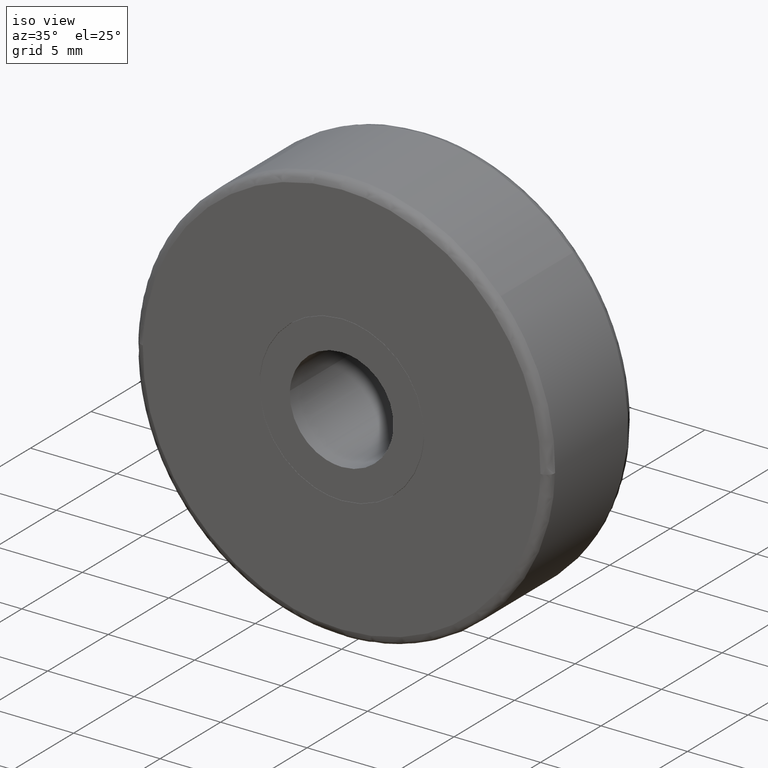
[diagram: clean part render]
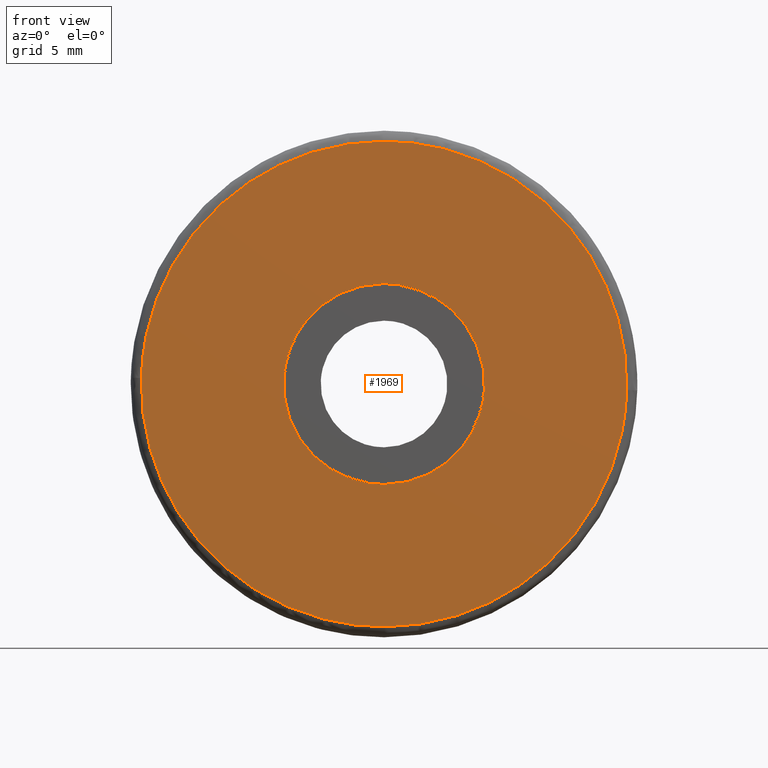
[diagram: tour spotlight — one face highlighted and labeled with its STEP entity id]
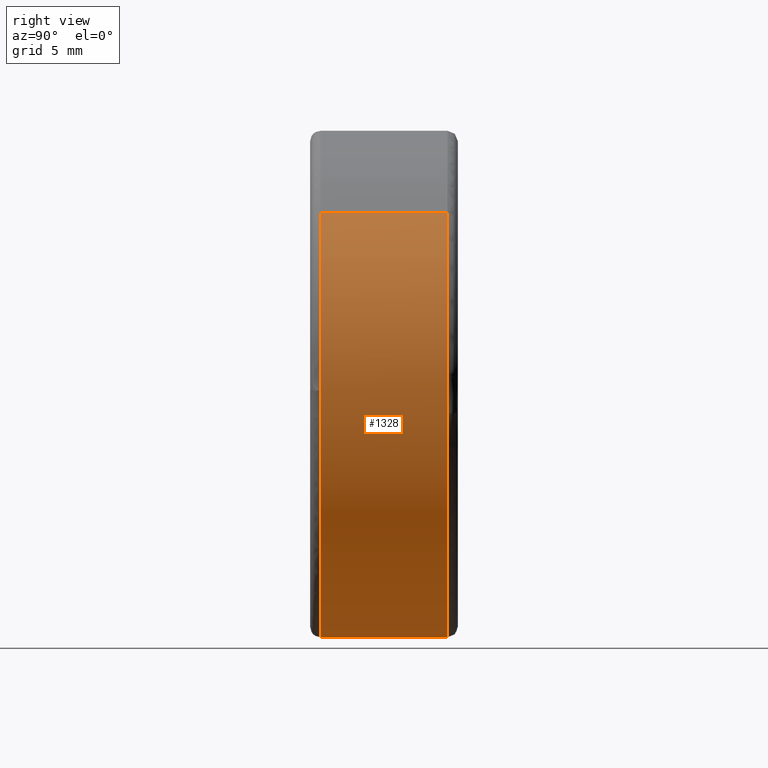
[diagram: tour spotlight — one face highlighted and labeled with its STEP entity id]
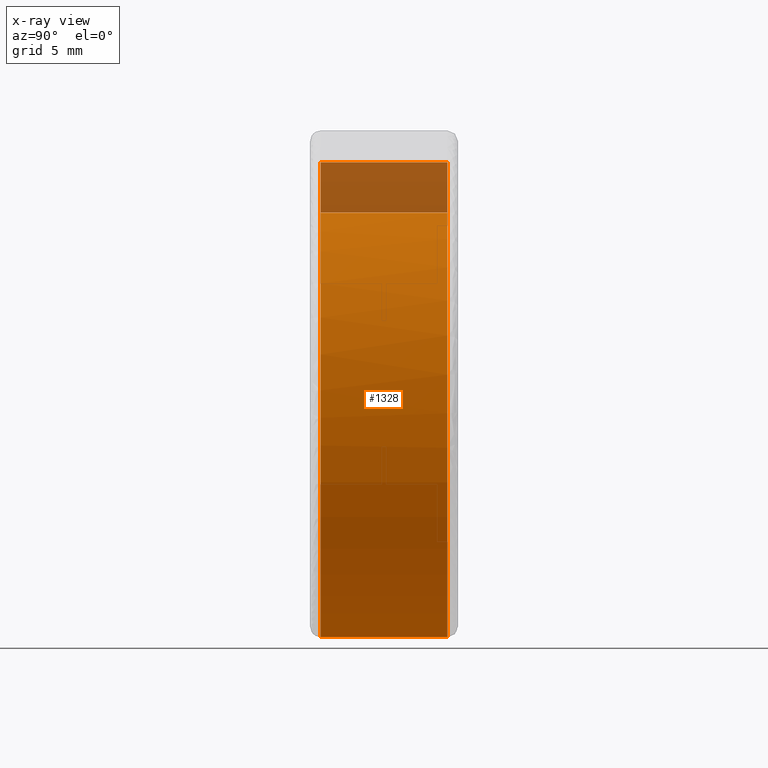
[diagram: x-ray of the same camera — body ghosted, this tour face saturated]
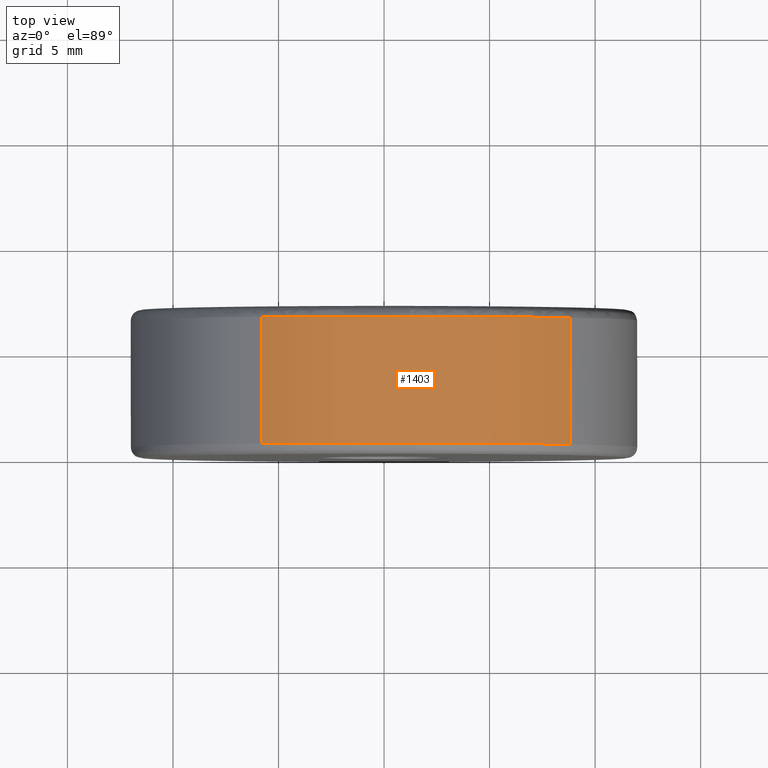
[diagram: tour spotlight — one face highlighted and labeled with its STEP entity id]
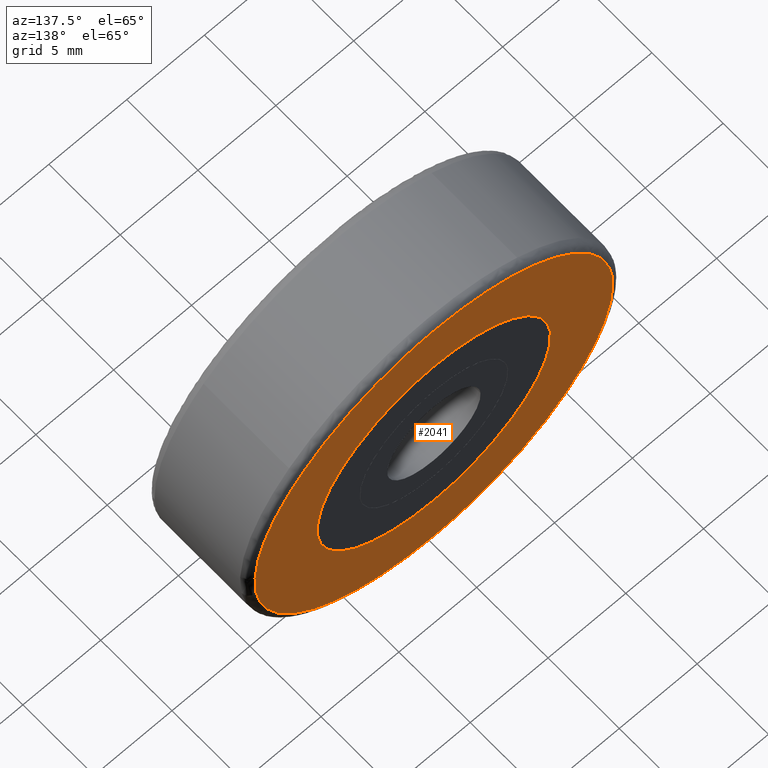
[diagram: tour spotlight — one face highlighted and labeled with its STEP entity id]
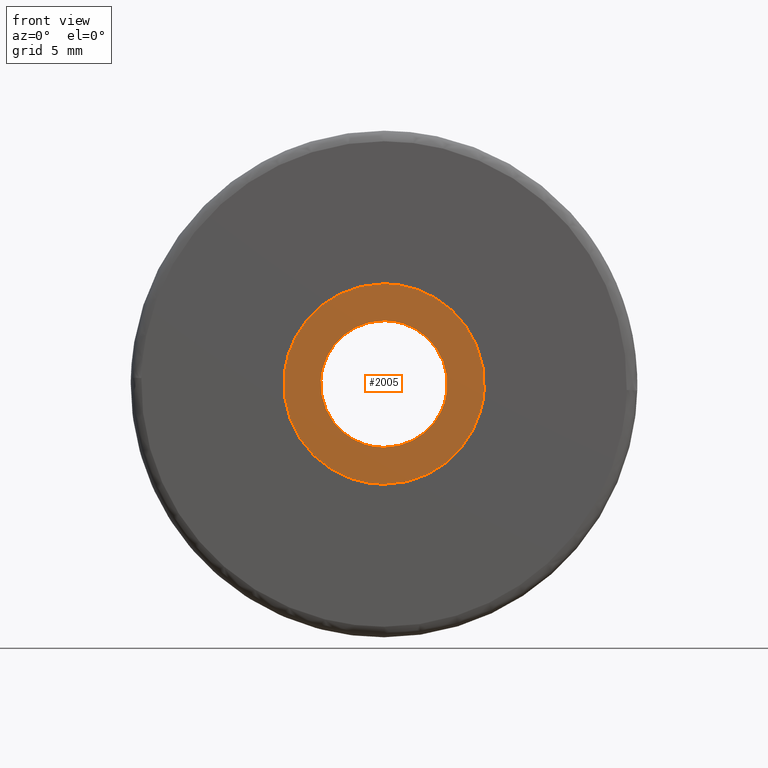
[diagram: tour spotlight — one face highlighted and labeled with its STEP entity id]
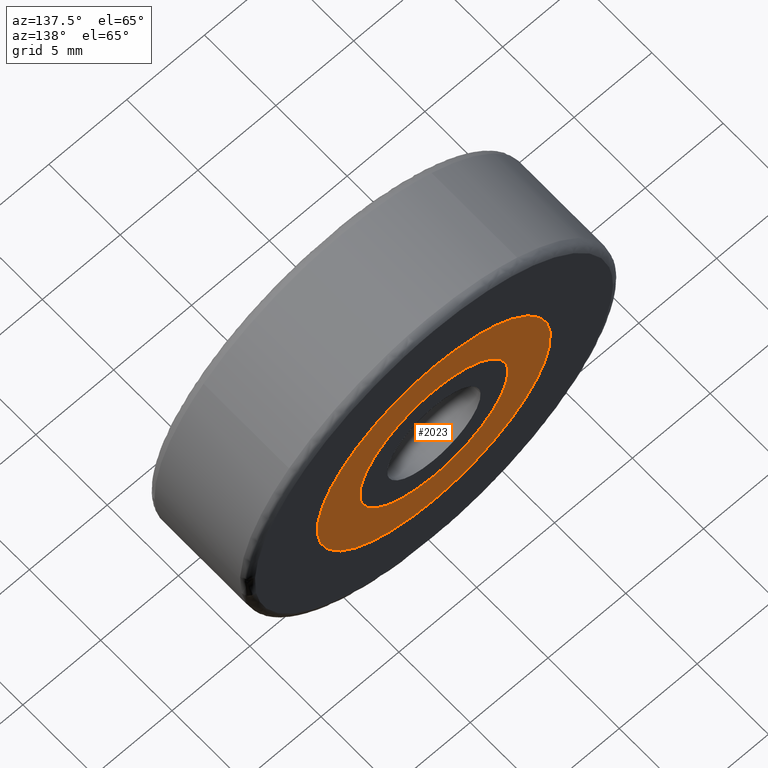
[diagram: tour spotlight — one face highlighted and labeled with its STEP entity id]
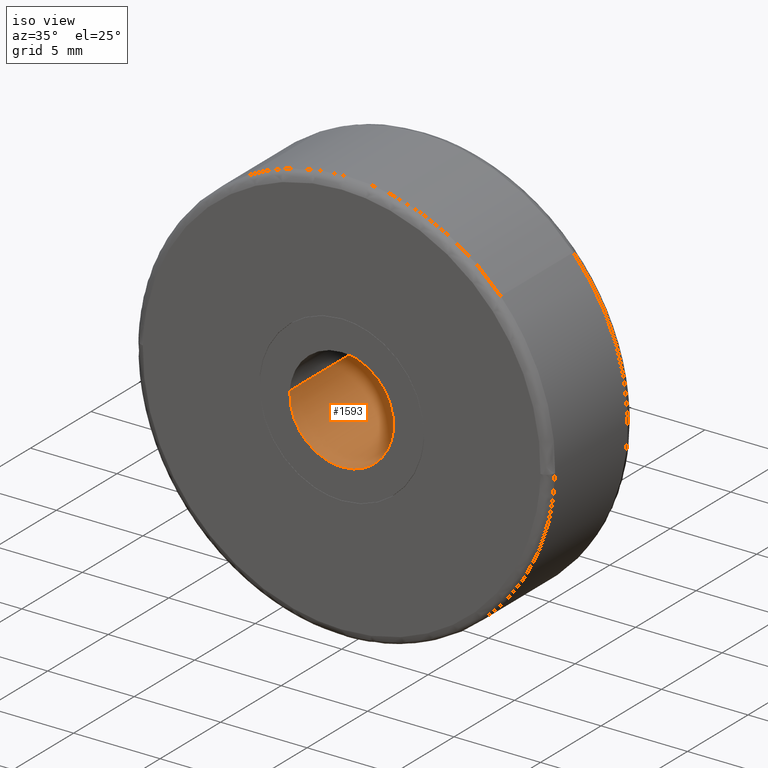
[diagram: tour spotlight — one face highlighted and labeled with its STEP entity id]
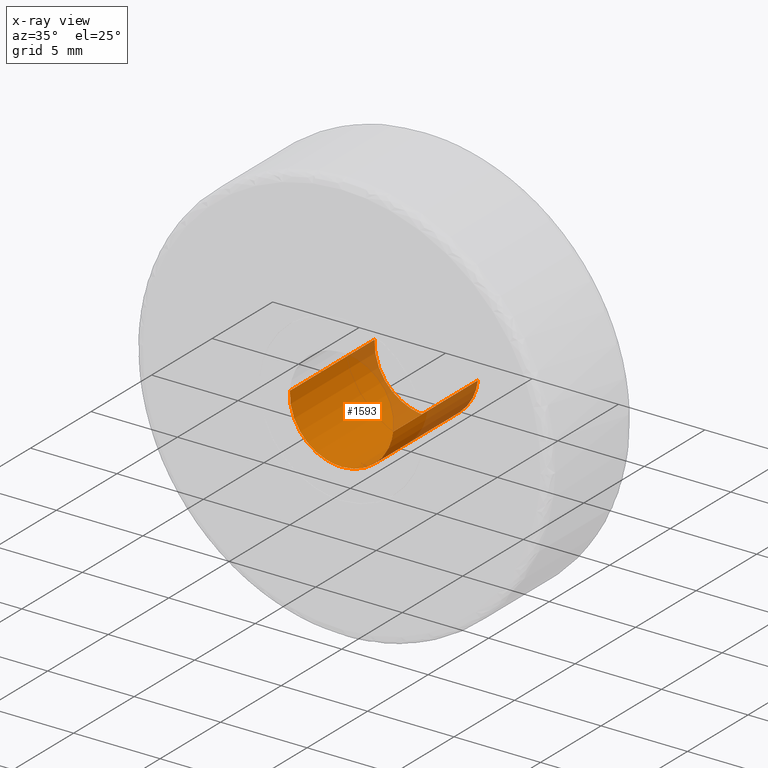
[diagram: x-ray of the same camera — body ghosted, this tour face saturated]
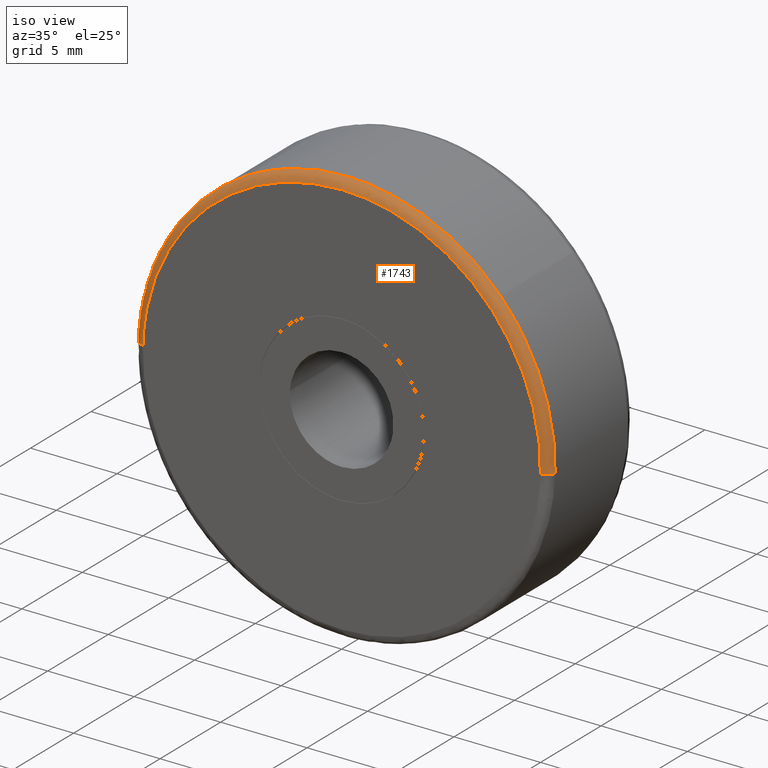
[diagram: tour spotlight — one face highlighted and labeled with its STEP entity id]
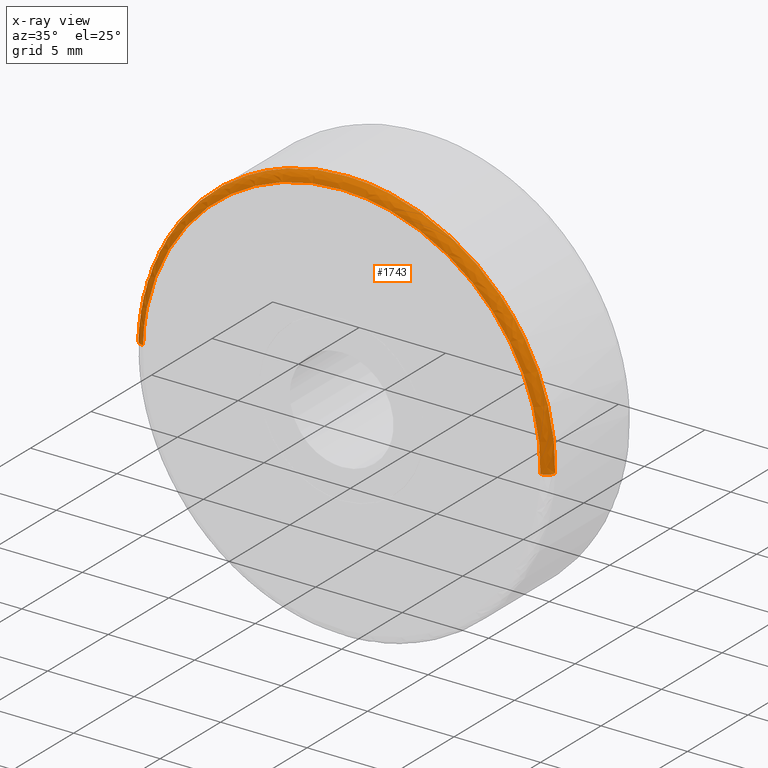
[diagram: x-ray of the same camera — body ghosted, this tour face saturated]
A machine part: a face-by-face anatomy tour. The part has 28 B-rep faces; the first image is the clean iso view, then the 8 largest visible faces are spotlighted one at a time (largest first), each with its STEP entity span.

Face 1 — front view, entity #1969. In plain terms, the highlighted face is a freeform B-spline surface patch.
Definition (entity closure, byte-faithful):
#829=CARTESIAN_POINT('',(-4.726725345488690,2.839428E-017,0.561842956986043));
#830=VERTEX_POINT('',#829);
#836=CARTESIAN_POINT('',(0.0,0.0,-4.760000000000001));
#837=VERTEX_POINT('',#836);
#838=CARTESIAN_POINT('',(-4.726725345488690,2.839428E-017,0.561842956986043));
#839=CARTESIAN_POINT('',(-4.760000000000001,0.0,0.281906809563175));
#840=CARTESIAN_POINT('',(-4.760000000000001,0.0,0.0));
#841=CARTESIAN_POINT('',(-4.760000000000001,0.0,-4.760000000000001));
#842=CARTESIAN_POINT('',(0.0,0.0,-4.760000000000001));
#850=(BOUNDED_CURVE()B_SPLINE_CURVE(2,(#838,#839,#840,#841,#842),.UNSPECIFIED.,.F.,.U.)B_SPLINE_CURVE_WITH_KNOTS((3,2,3),(0.229562473514223,0.250000000000000,0.500000000000000),.UNSPECIFIED.)CURVE()GEOMETRIC_REPRESENTATION_ITEM()RATIONAL_B_SPLINE_CURVE((0.956026754185100,0.976055948331983,1.0,0.707106781186548,1.0))REPRESENTATION_ITEM(''));
#851=EDGE_CURVE('',#830,#837,#850,.T.);
#853=CARTESIAN_POINT('',(4.751121640486563,2.775558E-017,-0.290591048210843));
#854=VERTEX_POINT('',#853);
#855=CARTESIAN_POINT('',(0.0,0.0,-4.760000000000001));
#856=CARTESIAN_POINT('',(4.477760878424028,0.0,-4.760000000000001));
#857=CARTESIAN_POINT('',(4.751121640486563,2.775558E-017,-0.290591048210843));
#865=(BOUNDED_CURVE()B_SPLINE_CURVE(2,(#855,#856,#857),.UNSPECIFIED.,.F.,.U.)B_SPLINE_CURVE_WITH_KNOTS((3,3),(0.500000000000000,0.739332962240157),.UNSPECIFIED.)CURVE()GEOMETRIC_REPRESENTATION_ITEM()RATIONAL_B_SPLINE_CURVE((1.0,0.719603993285287,0.976072041669321))REPRESENTATION_ITEM(''));
#866=EDGE_CURVE('',#837,#854,#865,.T.);
#940=CARTESIAN_POINT('',(0.0,0.0,4.760000000000001));
#941=VERTEX_POINT('',#940);
#942=CARTESIAN_POINT('',(4.751121640486563,2.775558E-017,-0.290591048210843));
#943=CARTESIAN_POINT('',(4.760000000000001,0.0,-0.145431153326277));
#944=CARTESIAN_POINT('',(4.760000000000001,0.0,0.0));
#945=CARTESIAN_POINT('',(4.760000000000001,0.0,4.760000000000001));
#946=CARTESIAN_POINT('',(0.0,0.0,4.760000000000001));
#954=(BOUNDED_CURVE()B_SPLINE_CURVE(2,(#942,#943,#944,#945,#946),.UNSPECIFIED.,.F.,.U.)B_SPLINE_CURVE_WITH_KNOTS((3,2,3),(0.739332962240158,0.750000000000000,1.0),.UNSPECIFIED.)CURVE()GEOMETRIC_REPRESENTATION_ITEM()RATIONAL_B_SPLINE_CURVE((0.976072041669322,0.987502787901261,1.0,0.707106781186548,1.0))REPRESENTATION_ITEM(''));
#955=EDGE_CURVE('',#854,#941,#954,.T.);
#957=CARTESIAN_POINT('',(0.0,0.0,4.760000000000001));
#958=CARTESIAN_POINT('',(-4.227710743492712,0.0,4.760000000000001));
#959=CARTESIAN_POINT('',(-4.726725345488691,2.839428E-017,0.561842956986043));
#967=(BOUNDED_CURVE()B_SPLINE_CURVE(2,(#957,#958,#959),.UNSPECIFIED.,.F.,.U.)B_SPLINE_CURVE_WITH_KNOTS((3,3),(0.0,0.229562473514223),.UNSPECIFIED.)CURVE()GEOMETRIC_REPRESENTATION_ITEM()RATIONAL_B_SPLINE_CURVE((1.0,0.731050832854565,0.956026754185101))REPRESENTATION_ITEM(''));
#968=EDGE_CURVE('',#941,#830,#967,.T.);
#1617=CARTESIAN_POINT('',(-11.496368177523900,-9.688065E-016,0.288996097631335));
#1618=VERTEX_POINT('',#1617);
#1619=CARTESIAN_POINT('',(0.0,-2.109424E-015,-11.500000000000000));
#1620=VERTEX_POINT('',#1619);
#1621=CARTESIAN_POINT('',(-11.496368177523902,-9.688065E-016,0.288996097631335));
#1622=CARTESIAN_POINT('',(-11.500000000000000,-2.109424E-015,0.144520869432563));
#1623=CARTESIAN_POINT('',(-11.500000000000000,-2.109424E-015,-1.642359E-016));
#1624=CARTESIAN_POINT('',(-11.500000000000000,-2.109424E-015,-11.500000000000000));
#1625=CARTESIAN_POINT('',(0.0,-2.109424E-015,-11.500000000000000));
#1633=(BOUNDED_CURVE()B_SPLINE_CURVE(2,(#1621,#1622,#1623,#1624,#1625),.UNSPECIFIED.,.F.,.U.)B_SPLINE_CURVE_WITH_KNOTS((3,2,3),(0.745579891769391,0.750000000000000,1.0),.UNSPECIFIED.)CURVE()GEOMETRIC_REPRESENTATION_ITEM()RATIONAL_B_SPLINE_CURVE((0.989826157680634,0.994821521091332,1.0,0.707106781186548,1.0))REPRESENTATION_ITEM(''));
#1634=EDGE_CURVE('',#1618,#1620,#1633,.T.);
#1651=CARTESIAN_POINT('',(11.496368177523900,-9.609969E-016,-0.288996097631335));
#1652=VERTEX_POINT('',#1651);
#1666=CARTESIAN_POINT('',(0.0,-2.109424E-015,-11.500000000000000));
#1667=CARTESIAN_POINT('',(11.214545576050746,-2.109424E-015,-11.500000000000000));
#1668=CARTESIAN_POINT('',(11.496368177523902,-9.609969E-016,-0.288996097631335));
#1676=(BOUNDED_CURVE()B_SPLINE_CURVE(2,(#1666,#1667,#1668),.UNSPECIFIED.,.F.,.U.)B_SPLINE_CURVE_WITH_KNOTS((3,3),(0.0,0.245579891769391),.UNSPECIFIED.)CURVE()GEOMETRIC_REPRESENTATION_ITEM()RATIONAL_B_SPLINE_CURVE((1.0,0.712285260095215,0.989826157680634))REPRESENTATION_ITEM(''));
#1677=EDGE_CURVE('',#1620,#1652,#1676,.T.);
#1705=CARTESIAN_POINT('',(0.0,-2.109424E-015,11.500000000000000));
#1706=VERTEX_POINT('',#1705);
#1707=CARTESIAN_POINT('',(0.0,-2.109424E-015,11.500000000000000));
#1708=CARTESIAN_POINT('',(-11.214545576050815,-2.109424E-015,11.499999999999996));
#1709=CARTESIAN_POINT('',(-11.496368177523905,-9.688065E-016,0.288996097631335));
#1717=(BOUNDED_CURVE()B_SPLINE_CURVE(2,(#1707,#1708,#1709),.UNSPECIFIED.,.F.,.U.)B_SPLINE_CURVE_WITH_KNOTS((3,3),(0.500000000000000,0.745579891769392),.UNSPECIFIED.)CURVE()GEOMETRIC_REPRESENTATION_ITEM()RATIONAL_B_SPLINE_CURVE((1.0,0.712285260095214,0.989826157680637))REPRESENTATION_ITEM(''));
#1718=EDGE_CURVE('',#1706,#1618,#1717,.T.);
#1720=CARTESIAN_POINT('',(11.496368177523902,-9.609969E-016,-0.288996097631335));
#1721=CARTESIAN_POINT('',(11.500000000000000,-2.109424E-015,-0.144520869432563));
#1722=CARTESIAN_POINT('',(11.500000000000000,-2.109424E-015,-1.642359E-016));
#1723=CARTESIAN_POINT('',(11.500000000000000,-2.109424E-015,11.500000000000000));
#1724=CARTESIAN_POINT('',(0.0,-2.109424E-015,11.500000000000000));
#1732=(BOUNDED_CURVE()B_SPLINE_CURVE(2,(#1720,#1721,#1722,#1723,#1724),.UNSPECIFIED.,.F.,.U.)B_SPLINE_CURVE_WITH_KNOTS((3,2,3),(0.245579891769391,0.250000000000000,0.500000000000000),.UNSPECIFIED.)CURVE()GEOMETRIC_REPRESENTATION_ITEM()RATIONAL_B_SPLINE_CURVE((0.989826157680634,0.994821521091332,1.0,0.707106781186548,1.0))REPRESENTATION_ITEM(''));
#1733=EDGE_CURVE('',#1652,#1706,#1732,.T.);
#1952=CARTESIAN_POINT('',(-12.644855529733510,-1.330248E-015,-12.648849955421539));
#1953=CARTESIAN_POINT('',(-12.644855529733521,-1.330248E-015,12.648850572329611));
#1954=CARTESIAN_POINT('',(12.644855940875679,-1.330248E-015,-12.648849955421539));
#1955=CARTESIAN_POINT('',(12.644855940875679,-1.330248E-015,12.648850572329611));
#1956=B_SPLINE_SURFACE_WITH_KNOTS('',1,1,((#1952,#1954),(#1953,#1955)),.UNSPECIFIED.,.F.,.F.,.U.,(2,2),(2,2),(0.0,25.297700527751150),(0.0,25.289711470609198),.UNSPECIFIED.);
#1957=ORIENTED_EDGE('',*,*,#1677,.T.);
#1958=ORIENTED_EDGE('',*,*,#1733,.T.);
#1959=ORIENTED_EDGE('',*,*,#1718,.T.);
#1960=ORIENTED_EDGE('',*,*,#1634,.T.);
#1961=EDGE_LOOP('',(#1957,#1958,#1959,#1960));
#1962=FACE_OUTER_BOUND('',#1961,.T.);
#1963=ORIENTED_EDGE('',*,*,#866,.F.);
#1964=ORIENTED_EDGE('',*,*,#851,.F.);
#1965=ORIENTED_EDGE('',*,*,#968,.F.);
#1966=ORIENTED_EDGE('',*,*,#955,.F.);
#1967=EDGE_LOOP('',(#1963,#1964,#1965,#1966));
#1968=FACE_BOUND('',#1967,.T.);
#1969=ADVANCED_FACE('',(#1962,#1968),#1956,.F.);

Face 2 — right view, entity #1328. An x-ray twin of the same camera follows (body ghosted, this face saturated) — the face is partly hidden behind the body. In plain terms, the highlighted face is a freeform B-spline surface patch.
Definition (entity closure, byte-faithful):
#1160=CARTESIAN_POINT('',(-5.810636787052554,6.650000000059783,10.499357129317559));
#1161=CARTESIAN_POINT('',(-7.056907316848397,6.650000000059783,9.809636292331240));
#1162=CARTESIAN_POINT('',(-8.107082491387921,6.650000000059784,8.847328041721486));
#1163=CARTESIAN_POINT('',(-16.954410533109407,6.650000000059783,0.740245550333565));
#1164=CARTESIAN_POINT('',(-8.847328041721486,6.650000000059784,-8.107082491387921));
#1165=CARTESIAN_POINT('',(-0.740245550333565,6.650000000059783,-16.954410533109407));
#1166=CARTESIAN_POINT('',(8.107082491387921,6.650000000059784,-8.847328041721486));
#1167=CARTESIAN_POINT('',(16.954410533109407,6.650000000059783,-0.740245550333565));
#1168=CARTESIAN_POINT('',(8.847328041721486,6.650000000059784,8.107082491387921));
#1169=CARTESIAN_POINT('',(-5.810636787052554,0.346249999846186,10.499357129317559));
#1170=CARTESIAN_POINT('',(-7.056907316848397,0.346249999846186,9.809636292331240));
#1171=CARTESIAN_POINT('',(-8.107082491387921,0.346249999846186,8.847328041721486));
#1172=CARTESIAN_POINT('',(-16.954410533109407,0.346249999846186,0.740245550333565));
#1173=CARTESIAN_POINT('',(-8.847328041721486,0.346249999846186,-8.107082491387921));
#1174=CARTESIAN_POINT('',(-0.740245550333565,0.346249999846186,-16.954410533109407));
#1175=CARTESIAN_POINT('',(8.107082491387921,0.346249999846186,-8.847328041721486));
#1176=CARTESIAN_POINT('',(16.954410533109407,0.346249999846186,-0.740245550333565));
#1177=CARTESIAN_POINT('',(8.847328041721486,0.346249999846186,8.107082491387921));
#1185=(BOUNDED_SURFACE()B_SPLINE_SURFACE(2,1,((#1160,#1169),(#1161,#1170),(#1162,#1171),(#1163,#1172),(#1164,#1173),(#1165,#1174),(#1166,#1175),(#1167,#1176),(#1168,#1177)),.UNSPECIFIED.,.F.,.F.,.U.)B_SPLINE_SURFACE_WITH_KNOTS((3,2,2,2,3),(2,2),(0.0,3.181160159025371,23.063411152933931,42.945662146842487,62.827913140751043),(0.0,6.303750000213599),.UNSPECIFIED.)GEOMETRIC_REPRESENTATION_ITEM()RATIONAL_B_SPLINE_SURFACE(((0.921270302782944,0.921270302782944),(0.953137084989848,0.953137084989848),(1.0,1.0),(0.707106781186548,0.707106781186548),(1.0,1.0),(0.707106781186548,0.707106781186548),(1.0,1.0),(0.707106781186548,0.707106781186548),(1.0,1.0)))REPRESENTATION_ITEM('')SURFACE());
#1186=CARTESIAN_POINT('',(-5.810634932665174,0.499999999980924,10.499358155586769));
#1187=VERTEX_POINT('',#1186);
#1188=CARTESIAN_POINT('',(-11.996210271399590,0.499999999851395,0.301561145320187));
#1189=VERTEX_POINT('',#1188);
#1190=CARTESIAN_POINT('',(-5.810634932665174,0.499999999980924,10.499358155586771));
#1191=CARTESIAN_POINT('',(-11.823509306634717,0.499999999938666,7.171667322931254));
#1192=CARTESIAN_POINT('',(-11.996210271399599,0.499999999851396,0.301561145320187));
#1200=(BOUNDED_CURVE()B_SPLINE_CURVE(2,(#1190,#1191,#1192),.UNSPECIFIED.,.F.,.U.)B_SPLINE_CURVE_WITH_KNOTS((3,3),(0.582484261791916,0.745579891769803),.UNSPECIFIED.)CURVE()GEOMETRIC_REPRESENTATION_ITEM()RATIONAL_B_SPLINE_CURVE((0.870495159113431,0.805504439765903,0.989826157681565))REPRESENTATION_ITEM(''));
#1201=EDGE_CURVE('',#1187,#1189,#1200,.T.);
#1202=ORIENTED_EDGE('',*,*,#1201,.F.);
#1203=CARTESIAN_POINT('',(-5.810634867246032,6.500000000006367,10.499358191791520));
#1204=VERTEX_POINT('',#1203);
#1205=CARTESIAN_POINT('',(-5.810634867246032,6.500000000006367,10.499358191791520));
#1206=CARTESIAN_POINT('',(-5.810634932665174,0.499999999980924,10.499358155586769));
#1207=QUASI_UNIFORM_CURVE('',1,(#1205,#1206),.UNSPECIFIED.,.F.,.U.);
#1208=EDGE_CURVE('',#1204,#1187,#1207,.T.);
#1209=ORIENTED_EDGE('',*,*,#1208,.F.);
#1210=CARTESIAN_POINT('',(-12.0,6.500000000050907,0.0));
#1211=VERTEX_POINT('',#1210);
#1212=CARTESIAN_POINT('',(-5.810634867246032,6.500000000006366,10.499358191791520));
#1213=CARTESIAN_POINT('',(-11.999999999999963,6.500000000020898,7.073992546621740));
#1214=CARTESIAN_POINT('',(-11.999999999999993,6.500000000050908,0.0));
#1222=(BOUNDED_CURVE()B_SPLINE_CURVE(2,(#1212,#1213,#1214),.UNSPECIFIED.,.F.,.U.)B_SPLINE_CURVE_WITH_KNOTS((3,3),(0.582484260833104,0.749999999999999),.UNSPECIFIED.)CURVE()GEOMETRIC_REPRESENTATION_ITEM()RATIONAL_B_SPLINE_CURVE((0.870495159877570,0.803743103813973,0.999999999999998))REPRESENTATION_ITEM(''));
#1223=EDGE_CURVE('',#1204,#1211,#1222,.T.);
#1224=ORIENTED_EDGE('',*,*,#1223,.T.);
#1225=CARTESIAN_POINT('',(0.0,6.500000000000000,-12.0));
#1226=VERTEX_POINT('',#1225);
#1227=CARTESIAN_POINT('',(-12.0,6.500000000050907,0.0));
#1228=CARTESIAN_POINT('',(-12.0,6.500000000000001,-12.0));
#1229=CARTESIAN_POINT('',(0.0,6.500000000000000,-12.0));
#1237=(BOUNDED_CURVE()B_SPLINE_CURVE(2,(#1227,#1228,#1229),.UNSPECIFIED.,.F.,.U.)B_SPLINE_CURVE_WITH_KNOTS((3,3),(0.750000000000000,1.0),.UNSPECIFIED.)CURVE()GEOMETRIC_REPRESENTATION_ITEM()RATIONAL_B_SPLINE_CURVE((1.0,0.707106781186548,1.0))REPRESENTATION_ITEM(''));
#1238=EDGE_CURVE('',#1211,#1226,#1237,.T.);
#1239=ORIENTED_EDGE('',*,*,#1238,.T.);
#1240=CARTESIAN_POINT('',(11.919739665420460,6.500000000054701,-1.385570751929333));
#1241=VERTEX_POINT('',#1240);
#1242=CARTESIAN_POINT('',(0.0,6.500000000000000,-12.0));
#1243=CARTESIAN_POINT('',(10.685900409915295,6.499999999999999,-12.0));
#1244=CARTESIAN_POINT('',(11.919739665420463,6.500000000054701,-1.385570751929333));
#1252=(BOUNDED_CURVE()B_SPLINE_CURVE(2,(#1242,#1243,#1244),.UNSPECIFIED.,.F.,.U.)B_SPLINE_CURVE_WITH_KNOTS((3,3),(0.0,0.229999999999874),.UNSPECIFIED.)CURVE()GEOMETRIC_REPRESENTATION_ITEM()RATIONAL_B_SPLINE_CURVE((1.0,0.730538238691772,0.956886118190411))REPRESENTATION_ITEM(''));
#1253=EDGE_CURVE('',#1226,#1241,#1252,.T.);
#1254=ORIENTED_EDGE('',*,*,#1253,.T.);
#1255=CARTESIAN_POINT('',(8.847328477253249,6.500000000000000,8.107082016088356));
#1256=VERTEX_POINT('',#1255);
#1257=CARTESIAN_POINT('',(11.919739665420463,6.500000000054701,-1.385570751929333));
#1258=CARTESIAN_POINT('',(11.999999999999998,6.499999999999999,-0.695109949179016));
#1259=CARTESIAN_POINT('',(12.0,6.500000000000000,-1.642359E-016));
#1260=CARTESIAN_POINT('',(12.000000000000002,6.500000000000000,4.666544040076233));
#1261=CARTESIAN_POINT('',(8.847328477253249,6.500000000000000,8.107082016088357));
#1269=(BOUNDED_CURVE()B_SPLINE_CURVE(2,(#1257,#1258,#1259,#1260,#1261),.UNSPECIFIED.,.F.,.U.)B_SPLINE_CURVE_WITH_KNOTS((3,2,3),(0.229999999999874,0.250000000000000,0.368415192864190),.UNSPECIFIED.)CURVE()GEOMETRIC_REPRESENTATION_ITEM()RATIONAL_B_SPLINE_CURVE((0.956886118190411,0.976568542494776,1.0,0.861267972022366,0.853959782840026))REPRESENTATION_ITEM(''));
#1270=EDGE_CURVE('',#1241,#1256,#1269,.T.);
#1271=ORIENTED_EDGE('',*,*,#1270,.T.);
#1272=CARTESIAN_POINT('',(8.847328482693925,0.500000000000004,8.107082010150897));
#1273=VERTEX_POINT('',#1272);
#1274=CARTESIAN_POINT('',(8.847328477253249,6.500000000000000,8.107082016088356));
#1275=CARTESIAN_POINT('',(8.847328482693925,0.500000000000004,8.107082010150897));
#1276=QUASI_UNIFORM_CURVE('',1,(#1274,#1275),.UNSPECIFIED.,.F.,.U.);
#1277=EDGE_CURVE('',#1256,#1273,#1276,.T.);
#1278=ORIENTED_EDGE('',*,*,#1277,.T.);
#1279=CARTESIAN_POINT('',(11.996210271399590,0.499999999851395,-0.301561145320187));
#1280=VERTEX_POINT('',#1279);
#1281=CARTESIAN_POINT('',(11.996210271399594,0.499999999851395,-0.301561145320187));
#1282=CARTESIAN_POINT('',(12.000000000000002,0.500000000000000,-0.150804385480692));
#1283=CARTESIAN_POINT('',(12.0,0.500000000000000,-1.642359E-016));
#1284=CARTESIAN_POINT('',(12.000000000000002,0.500000000000000,4.666544030805148));
#1285=CARTESIAN_POINT('',(8.847328482693925,0.500000000000004,8.107082010150897));
#1293=(BOUNDED_CURVE()B_SPLINE_CURVE(2,(#1281,#1282,#1283,#1284,#1285),.UNSPECIFIED.,.F.,.U.)B_SPLINE_CURVE_WITH_KNOTS((3,2,3),(0.245579891769804,0.250000000000000,0.368415192661571),.UNSPECIFIED.)CURVE()GEOMETRIC_REPRESENTATION_ITEM()RATIONAL_B_SPLINE_CURVE((0.989826157681567,0.994821521091816,1.0,0.861267972259750,0.853959782865036))REPRESENTATION_ITEM(''));
#1294=EDGE_CURVE('',#1280,#1273,#1293,.T.);
#1295=ORIENTED_EDGE('',*,*,#1294,.F.);
#1296=CARTESIAN_POINT('',(0.0,0.500000000000000,-12.0));
#1297=VERTEX_POINT('',#1296);
#1298=CARTESIAN_POINT('',(0.0,0.500000000000000,-12.0));
#1299=CARTESIAN_POINT('',(11.702134514167529,0.500000000000000,-12.000000000000002));
#1300=CARTESIAN_POINT('',(11.996210271399594,0.499999999851395,-0.301561145320187));
#1308=(BOUNDED_CURVE()B_SPLINE_CURVE(2,(#1298,#1299,#1300),.UNSPECIFIED.,.F.,.U.)B_SPLINE_CURVE_WITH_KNOTS((3,3),(0.0,0.245579891769804),.UNSPECIFIED.)CURVE()GEOMETRIC_REPRESENTATION_ITEM()RATIONAL_B_SPLINE_CURVE((1.0,0.712285260094732,0.989826157681567))REPRESENTATION_ITEM(''));
#1309=EDGE_CURVE('',#1297,#1280,#1308,.T.);
#1310=ORIENTED_EDGE('',*,*,#1309,.F.);
#1311=CARTESIAN_POINT('',(-11.996210271399594,0.499999999851395,0.301561145320187));
#1312=CARTESIAN_POINT('',(-12.000000000000002,0.500000000000000,0.150804385480692));
#1313=CARTESIAN_POINT('',(-12.0,0.500000000000000,-1.642359E-016));
#1314=CARTESIAN_POINT('',(-12.0,0.500000000000000,-12.0));
#1315=CARTESIAN_POINT('',(0.0,0.500000000000000,-12.0));
#1323=(BOUNDED_CURVE()B_SPLINE_CURVE(2,(#1311,#1312,#1313,#1314,#1315),.UNSPECIFIED.,.F.,.U.)B_SPLINE_CURVE_WITH_KNOTS((3,2,3),(0.745579891769804,0.750000000000000,1.0),.UNSPECIFIED.)CURVE()GEOMETRIC_REPRESENTATION_ITEM()RATIONAL_B_SPLINE_CURVE((0.989826157681567,0.994821521091816,1.0,0.707106781186548,1.0))REPRESENTATION_ITEM(''));
#1324=EDGE_CURVE('',#1189,#1297,#1323,.T.);
#1325=ORIENTED_EDGE('',*,*,#1324,.F.);
#1326=EDGE_LOOP('',(#1202,#1209,#1224,#1239,#1254,#1271,#1278,#1295,#1310,#1325));
#1327=FACE_OUTER_BOUND('',#1326,.T.);
#1328=ADVANCED_FACE('',(#1327),#1185,.T.);

Face 3 — top view, entity #1403. In plain terms, the highlighted face is a freeform B-spline surface patch.
Definition (entity closure, byte-faithful):
#1186=CARTESIAN_POINT('',(-5.810634932665174,0.499999999980924,10.499358155586769));
#1187=VERTEX_POINT('',#1186);
#1203=CARTESIAN_POINT('',(-5.810634867246032,6.500000000006367,10.499358191791520));
#1204=VERTEX_POINT('',#1203);
#1205=CARTESIAN_POINT('',(-5.810634867246032,6.500000000006367,10.499358191791520));
#1206=CARTESIAN_POINT('',(-5.810634932665174,0.499999999980924,10.499358155586769));
#1207=QUASI_UNIFORM_CURVE('',1,(#1205,#1206),.UNSPECIFIED.,.F.,.U.);
#1208=EDGE_CURVE('',#1204,#1187,#1207,.T.);
#1255=CARTESIAN_POINT('',(8.847328477253249,6.500000000000000,8.107082016088356));
#1256=VERTEX_POINT('',#1255);
#1272=CARTESIAN_POINT('',(8.847328482693925,0.500000000000004,8.107082010150897));
#1273=VERTEX_POINT('',#1272);
#1274=CARTESIAN_POINT('',(8.847328477253249,6.500000000000000,8.107082016088356));
#1275=CARTESIAN_POINT('',(8.847328482693925,0.500000000000004,8.107082010150897));
#1276=QUASI_UNIFORM_CURVE('',1,(#1274,#1275),.UNSPECIFIED.,.F.,.U.);
#1277=EDGE_CURVE('',#1256,#1273,#1276,.T.);
#1329=CARTESIAN_POINT('',(8.847328041721486,6.650000000059784,8.107082491387921));
#1330=CARTESIAN_POINT('',(2.460650501839288,6.650000000059784,15.076917984249544));
#1331=CARTESIAN_POINT('',(-5.810636787052554,6.650000000059783,10.499357129317559));
#1332=CARTESIAN_POINT('',(8.847328041721486,0.346249999846186,8.107082491387921));
#1333=CARTESIAN_POINT('',(2.460650501839288,0.346249999846186,15.076917984249544));
#1334=CARTESIAN_POINT('',(-5.810636787052554,0.346249999846186,10.499357129317559));
#1342=(BOUNDED_SURFACE()B_SPLINE_SURFACE(2,1,((#1329,#1332),(#1330,#1333),(#1331,#1334)),.UNSPECIFIED.,.F.,.F.,.U.)B_SPLINE_SURFACE_WITH_KNOTS((3,3),(2,2),(0.0,16.628055996427161),(0.0,6.303750000213598),.UNSPECIFIED.)GEOMETRIC_REPRESENTATION_ITEM()RATIONAL_B_SPLINE_SURFACE(((1.0,1.0),(0.753969696196700,0.753969696196700),(0.921270302782944,0.921270302782944)))REPRESENTATION_ITEM('')SURFACE());
#1343=CARTESIAN_POINT('',(0.0,0.500000000000000,12.0));
#1344=VERTEX_POINT('',#1343);
#1345=CARTESIAN_POINT('',(0.0,0.500000000000000,12.0));
#1346=CARTESIAN_POINT('',(-3.099093703464986,0.500000000000000,11.999999999999996));
#1347=CARTESIAN_POINT('',(-5.810634932665174,0.499999999980924,10.499358155586771));
#1355=(BOUNDED_CURVE()B_SPLINE_CURVE(2,(#1345,#1346,#1347),.UNSPECIFIED.,.F.,.U.)B_SPLINE_CURVE_WITH_KNOTS((3,3),(0.500000000000000,0.582484261791916),.UNSPECIFIED.)CURVE()GEOMETRIC_REPRESENTATION_ITEM()RATIONAL_B_SPLINE_CURVE((1.0,0.903363676249257,0.870495159113431))REPRESENTATION_ITEM(''));
#1356=EDGE_CURVE('',#1344,#1187,#1355,.T.);
#1357=ORIENTED_EDGE('',*,*,#1356,.F.);
#1358=CARTESIAN_POINT('',(8.847328482693925,0.500000000000004,8.107082010150897));
#1359=CARTESIAN_POINT('',(5.280127149796825,0.500000000000000,12.000000000000002));
#1360=CARTESIAN_POINT('',(0.0,0.500000000000000,12.0));
#1368=(BOUNDED_CURVE()B_SPLINE_CURVE(2,(#1358,#1359,#1360),.UNSPECIFIED.,.F.,.U.)B_SPLINE_CURVE_WITH_KNOTS((3,3),(0.368415192661570,0.500000000000000),.UNSPECIFIED.)CURVE()GEOMETRIC_REPRESENTATION_ITEM()RATIONAL_B_SPLINE_CURVE((0.853959782865036,0.845838808926797,1.0))REPRESENTATION_ITEM(''));
#1369=EDGE_CURVE('',#1273,#1344,#1368,.T.);
#1370=ORIENTED_EDGE('',*,*,#1369,.F.);
#1371=ORIENTED_EDGE('',*,*,#1277,.F.);
#1372=CARTESIAN_POINT('',(0.0,6.500000000000000,12.0));
#1373=VERTEX_POINT('',#1372);
#1374=CARTESIAN_POINT('',(8.847328477253249,6.500000000000000,8.107082016088356));
#1375=CARTESIAN_POINT('',(5.280127140184427,6.500000000000001,12.000000000000002));
#1376=CARTESIAN_POINT('',(0.0,6.500000000000000,12.0));
#1384=(BOUNDED_CURVE()B_SPLINE_CURVE(2,(#1374,#1375,#1376),.UNSPECIFIED.,.F.,.U.)B_SPLINE_CURVE_WITH_KNOTS((3,3),(0.368415192864190,0.500000000000000),.UNSPECIFIED.)CURVE()GEOMETRIC_REPRESENTATION_ITEM()RATIONAL_B_SPLINE_CURVE((0.853959782840026,0.845838809164181,1.0))REPRESENTATION_ITEM(''));
#1385=EDGE_CURVE('',#1256,#1373,#1384,.T.);
#1386=ORIENTED_EDGE('',*,*,#1385,.T.);
#1387=CARTESIAN_POINT('',(0.0,6.500000000000000,12.0));
#1388=CARTESIAN_POINT('',(-3.099093663586892,6.500000000000000,12.000000000000002));
#1389=CARTESIAN_POINT('',(-5.810634867246032,6.500000000006366,10.499358191791520));
#1397=(BOUNDED_CURVE()B_SPLINE_CURVE(2,(#1387,#1388,#1389),.UNSPECIFIED.,.F.,.U.)B_SPLINE_CURVE_WITH_KNOTS((3,3),(0.500000000000000,0.582484260833104),.UNSPECIFIED.)CURVE()GEOMETRIC_REPRESENTATION_ITEM()RATIONAL_B_SPLINE_CURVE((1.0,0.903363677372575,0.870495159877570))REPRESENTATION_ITEM(''));
#1398=EDGE_CURVE('',#1373,#1204,#1397,.T.);
#1399=ORIENTED_EDGE('',*,*,#1398,.T.);
#1400=ORIENTED_EDGE('',*,*,#1208,.T.);
#1401=EDGE_LOOP('',(#1357,#1370,#1371,#1386,#1399,#1400));
#1402=FACE_OUTER_BOUND('',#1401,.T.);
#1403=ADVANCED_FACE('',(#1402),#1342,.T.);

Face 4 — auxiliary view, entity #2041. In plain terms, the highlighted face is a freeform B-spline surface patch.
Definition (entity closure, byte-faithful):
#79=CARTESIAN_POINT('',(-7.476880783411273,7.0,0.588433301705687));
#80=VERTEX_POINT('',#79);
#86=CARTESIAN_POINT('',(0.0,7.0,7.500000000000000));
#87=VERTEX_POINT('',#86);
#88=CARTESIAN_POINT('',(0.0,7.0,7.500000000000000));
#89=CARTESIAN_POINT('',(-6.932937910708230,7.0,7.500000000000000));
#90=CARTESIAN_POINT('',(-7.476880783411273,6.999999999999999,0.588433301705687));
#98=(BOUNDED_CURVE()B_SPLINE_CURVE(2,(#88,#89,#90),.UNSPECIFIED.,.F.,.U.)B_SPLINE_CURVE_WITH_KNOTS((3,3),(0.0,0.236331527985470),.UNSPECIFIED.)CURVE()GEOMETRIC_REPRESENTATION_ITEM()RATIONAL_B_SPLINE_CURVE((1.0,0.723120392244937,0.969723830640047))REPRESENTATION_ITEM(''));
#99=EDGE_CURVE('',#87,#80,#98,.T.);
#101=CARTESIAN_POINT('',(7.476880783411273,7.0,-0.588433301705688));
#102=VERTEX_POINT('',#101);
#103=CARTESIAN_POINT('',(7.476880783411273,7.0,-0.588433301705688));
#104=CARTESIAN_POINT('',(7.500000000000000,7.000000000000001,-0.294670821422498));
#105=CARTESIAN_POINT('',(7.500000000000000,7.0,0.0));
#106=CARTESIAN_POINT('',(7.500000000000000,6.999999999999999,7.500000000000000));
#107=CARTESIAN_POINT('',(0.0,7.0,7.500000000000000));
#115=(BOUNDED_CURVE()B_SPLINE_CURVE(2,(#103,#104,#105,#106,#107),.UNSPECIFIED.,.F.,.U.)B_SPLINE_CURVE_WITH_KNOTS((3,2,3),(0.736331527985470,0.750000000000000,1.0),.UNSPECIFIED.)CURVE()GEOMETRIC_REPRESENTATION_ITEM()RATIONAL_B_SPLINE_CURVE((0.969723830640047,0.983986388941611,1.0,0.707106781186547,1.0))REPRESENTATION_ITEM(''));
#116=EDGE_CURVE('',#102,#87,#115,.T.);
#192=CARTESIAN_POINT('',(0.0,7.0,-7.500000000000000));
#193=VERTEX_POINT('',#192);
#194=CARTESIAN_POINT('',(0.0,7.0,-7.500000000000000));
#195=CARTESIAN_POINT('',(6.932937910708230,7.0,-7.500000000000000));
#196=CARTESIAN_POINT('',(7.476880783411273,6.999999999999999,-0.588433301705688));
#204=(BOUNDED_CURVE()B_SPLINE_CURVE(2,(#194,#195,#196),.UNSPECIFIED.,.F.,.U.)B_SPLINE_CURVE_WITH_KNOTS((3,3),(0.500000000000000,0.736331527985470),.UNSPECIFIED.)CURVE()GEOMETRIC_REPRESENTATION_ITEM()RATIONAL_B_SPLINE_CURVE((1.0,0.723120392244937,0.969723830640047))REPRESENTATION_ITEM(''));
#205=EDGE_CURVE('',#193,#102,#204,.T.);
#207=CARTESIAN_POINT('',(-7.476880783411273,6.999999999999999,0.588433301705687));
#208=CARTESIAN_POINT('',(-7.500000000000000,7.0,0.294670821422496));
#209=CARTESIAN_POINT('',(-7.500000000000000,7.0,0.0));
#210=CARTESIAN_POINT('',(-7.500000000000000,6.999999999999999,-7.500000000000000));
#211=CARTESIAN_POINT('',(0.0,7.0,-7.500000000000000));
#219=(BOUNDED_CURVE()B_SPLINE_CURVE(2,(#207,#208,#209,#210,#211),.UNSPECIFIED.,.F.,.U.)B_SPLINE_CURVE_WITH_KNOTS((3,2,3),(0.236331527985470,0.250000000000000,0.500000000000000),.UNSPECIFIED.)CURVE()GEOMETRIC_REPRESENTATION_ITEM()RATIONAL_B_SPLINE_CURVE((0.969723830640047,0.983986388941611,1.0,0.707106781186547,1.0))REPRESENTATION_ITEM(''));
#220=EDGE_CURVE('',#80,#193,#219,.T.);
#1775=CARTESIAN_POINT('',(11.423083846275119,7.0,-1.327838637292638));
#1776=VERTEX_POINT('',#1775);
#1790=CARTESIAN_POINT('',(0.0,7.0,11.500000000000000));
#1791=VERTEX_POINT('',#1790);
#1792=CARTESIAN_POINT('',(11.423083846275116,7.0,-1.327838637292638));
#1793=CARTESIAN_POINT('',(11.499999999999995,7.0,-0.666147034628190));
#1794=CARTESIAN_POINT('',(11.500000000000000,7.0,-1.642359E-016));
#1795=CARTESIAN_POINT('',(11.500000000000000,6.999999999999999,11.500000000000000));
#1796=CARTESIAN_POINT('',(0.0,7.0,11.500000000000000));
#1804=(BOUNDED_CURVE()B_SPLINE_CURVE(2,(#1792,#1793,#1794,#1795,#1796),.UNSPECIFIED.,.F.,.U.)B_SPLINE_CURVE_WITH_KNOTS((3,2,3),(0.229999999999924,0.250000000000000,0.500000000000000),.UNSPECIFIED.)CURVE()GEOMETRIC_REPRESENTATION_ITEM()RATIONAL_B_SPLINE_CURVE((0.956886118190510,0.976568542494834,1.0,0.707106781186548,1.0))REPRESENTATION_ITEM(''));
#1805=EDGE_CURVE('',#1776,#1791,#1804,.T.);
#1807=CARTESIAN_POINT('',(-11.500000000088900,7.0,0.0));
#1808=VERTEX_POINT('',#1807);
#1809=CARTESIAN_POINT('',(0.0,7.0,11.500000000000000));
#1810=CARTESIAN_POINT('',(-11.499999999999943,7.0,11.500000000000000));
#1811=CARTESIAN_POINT('',(-11.500000000088903,7.0,0.0));
#1819=(BOUNDED_CURVE()B_SPLINE_CURVE(2,(#1809,#1810,#1811),.UNSPECIFIED.,.F.,.U.)B_SPLINE_CURVE_WITH_KNOTS((3,3),(0.500000000000000,0.749999999999999),.UNSPECIFIED.)CURVE()GEOMETRIC_REPRESENTATION_ITEM()RATIONAL_B_SPLINE_CURVE((1.0,0.707106781186549,0.999999999999998))REPRESENTATION_ITEM(''));
#1820=EDGE_CURVE('',#1791,#1808,#1819,.T.);
#1866=CARTESIAN_POINT('',(0.0,7.0,-11.500000000000000));
#1867=VERTEX_POINT('',#1866);
#1868=CARTESIAN_POINT('',(-11.500000000088900,7.0,0.0));
#1869=CARTESIAN_POINT('',(-11.500000000000000,6.999999999999999,-11.500000000000000));
#1870=CARTESIAN_POINT('',(0.0,7.0,-11.500000000000000));
#1878=(BOUNDED_CURVE()B_SPLINE_CURVE(2,(#1868,#1869,#1870),.UNSPECIFIED.,.F.,.U.)B_SPLINE_CURVE_WITH_KNOTS((3,3),(0.750000000000000,1.0),.UNSPECIFIED.)CURVE()GEOMETRIC_REPRESENTATION_ITEM()RATIONAL_B_SPLINE_CURVE((1.0,0.707106781186548,1.0))REPRESENTATION_ITEM(''));
#1879=EDGE_CURVE('',#1808,#1867,#1878,.T.);
#1881=CARTESIAN_POINT('',(0.0,7.0,-11.500000000000000));
#1882=CARTESIAN_POINT('',(10.240654559505197,6.999999999999999,-11.499999999999998));
#1883=CARTESIAN_POINT('',(11.423083846275116,7.0,-1.327838637292638));
#1891=(BOUNDED_CURVE()B_SPLINE_CURVE(2,(#1881,#1882,#1883),.UNSPECIFIED.,.F.,.U.)B_SPLINE_CURVE_WITH_KNOTS((3,3),(0.0,0.229999999999924),.UNSPECIFIED.)CURVE()GEOMETRIC_REPRESENTATION_ITEM()RATIONAL_B_SPLINE_CURVE((1.0,0.730538238691713,0.956886118190510))REPRESENTATION_ITEM(''));
#1892=EDGE_CURVE('',#1867,#1776,#1891,.T.);
#2024=CARTESIAN_POINT('',(-12.648846854670960,7.0,12.648849955421539));
#2025=CARTESIAN_POINT('',(-12.648846854670960,7.0,-12.648850572329611));
#2026=CARTESIAN_POINT('',(12.648785392160990,7.0,12.648849955421539));
#2027=CARTESIAN_POINT('',(12.648785392160990,7.0,-12.648850572329611));
#2028=B_SPLINE_SURFACE_WITH_KNOTS('',1,1,((#2024,#2026),(#2025,#2027)),.UNSPECIFIED.,.F.,.F.,.U.,(2,2),(2,2),(0.0,25.297700527751150),(0.0,25.297632246831949),.UNSPECIFIED.);
#2029=ORIENTED_EDGE('',*,*,#1879,.F.);
#2030=ORIENTED_EDGE('',*,*,#1820,.F.);
#2031=ORIENTED_EDGE('',*,*,#1805,.F.);
#2032=ORIENTED_EDGE('',*,*,#1892,.F.);
#2033=EDGE_LOOP('',(#2029,#2030,#2031,#2032));
#2034=FACE_OUTER_BOUND('',#2033,.T.);
#2035=ORIENTED_EDGE('',*,*,#205,.T.);
#2036=ORIENTED_EDGE('',*,*,#116,.T.);
#2037=ORIENTED_EDGE('',*,*,#99,.T.);
#2038=ORIENTED_EDGE('',*,*,#220,.T.);
#2039=EDGE_LOOP('',(#2035,#2036,#2037,#2038));
#2040=FACE_BOUND('',#2039,.T.);
#2041=ADVANCED_FACE('',(#2034,#2040),#2028,.F.);

Face 5 — front view, entity #2005. In plain terms, the highlighted face is a freeform B-spline surface patch.
Definition (entity closure, byte-faithful):
#1030=CARTESIAN_POINT('',(4.741140292502350,2.775558E-017,-0.289980562815380));
#1031=VERTEX_POINT('',#1030);
#1037=CARTESIAN_POINT('',(0.0,0.0,-4.750000000000000));
#1038=VERTEX_POINT('',#1037);
#1039=CARTESIAN_POINT('',(0.0,0.0,-4.750000000000000));
#1040=CARTESIAN_POINT('',(4.468353817755182,0.0,-4.750000000000000));
#1041=CARTESIAN_POINT('',(4.741140292502350,2.775558E-017,-0.289980562815380));
#1049=(BOUNDED_CURVE()B_SPLINE_CURVE(2,(#1039,#1040,#1041),.UNSPECIFIED.,.F.,.U.)B_SPLINE_CURVE_WITH_KNOTS((3,3),(0.500000000000000,0.739332962240162),.UNSPECIFIED.)CURVE()GEOMETRIC_REPRESENTATION_ITEM()RATIONAL_B_SPLINE_CURVE((1.0,0.719603993285282,0.976072041669330))REPRESENTATION_ITEM(''));
#1050=EDGE_CURVE('',#1038,#1031,#1049,.T.);
#1052=CARTESIAN_POINT('',(-4.716795250225042,2.839428E-017,0.560662614639572));
#1053=VERTEX_POINT('',#1052);
#1054=CARTESIAN_POINT('',(-4.716795250225041,2.839428E-017,0.560662614639572));
#1055=CARTESIAN_POINT('',(-4.750000000000000,0.0,0.281314568366754));
#1056=CARTESIAN_POINT('',(-4.750000000000000,0.0,0.0));
#1057=CARTESIAN_POINT('',(-4.750000000000000,0.0,-4.750000000000000));
#1058=CARTESIAN_POINT('',(0.0,0.0,-4.750000000000000));
#1066=(BOUNDED_CURVE()B_SPLINE_CURVE(2,(#1054,#1055,#1056,#1057,#1058),.UNSPECIFIED.,.F.,.U.)B_SPLINE_CURVE_WITH_KNOTS((3,2,3),(0.229562473514213,0.250000000000000,0.500000000000000),.UNSPECIFIED.)CURVE()GEOMETRIC_REPRESENTATION_ITEM()RATIONAL_B_SPLINE_CURVE((0.956026754185081,0.976055948331971,1.0,0.707106781186548,1.0))REPRESENTATION_ITEM(''));
#1067=EDGE_CURVE('',#1053,#1038,#1066,.T.);
#1111=CARTESIAN_POINT('',(0.0,0.0,4.750000000000000));
#1112=VERTEX_POINT('',#1111);
#1113=CARTESIAN_POINT('',(0.0,0.0,4.750000000000000));
#1114=CARTESIAN_POINT('',(-4.218828998233022,0.0,4.749999999999999));
#1115=CARTESIAN_POINT('',(-4.716795250225041,2.839428E-017,0.560662614639572));
#1123=(BOUNDED_CURVE()B_SPLINE_CURVE(2,(#1113,#1114,#1115),.UNSPECIFIED.,.F.,.U.)B_SPLINE_CURVE_WITH_KNOTS((3,3),(0.0,0.229562473514213),.UNSPECIFIED.)CURVE()GEOMETRIC_REPRESENTATION_ITEM()RATIONAL_B_SPLINE_CURVE((1.0,0.731050832854577,0.956026754185081))REPRESENTATION_ITEM(''));
#1124=EDGE_CURVE('',#1112,#1053,#1123,.T.);
#1126=CARTESIAN_POINT('',(4.741140292502350,2.775558E-017,-0.289980562815380));
#1127=CARTESIAN_POINT('',(4.750000000000000,0.0,-0.145125625693177));
#1128=CARTESIAN_POINT('',(4.750000000000000,0.0,0.0));
#1129=CARTESIAN_POINT('',(4.750000000000000,0.0,4.750000000000000));
#1130=CARTESIAN_POINT('',(0.0,0.0,4.750000000000000));
#1138=(BOUNDED_CURVE()B_SPLINE_CURVE(2,(#1126,#1127,#1128,#1129,#1130),.UNSPECIFIED.,.F.,.U.)B_SPLINE_CURVE_WITH_KNOTS((3,2,3),(0.739332962240162,0.750000000000000,1.0),.UNSPECIFIED.)CURVE()GEOMETRIC_REPRESENTATION_ITEM()RATIONAL_B_SPLINE_CURVE((0.976072041669331,0.987502787901266,1.0,0.707106781186548,1.0))REPRESENTATION_ITEM(''));
#1139=EDGE_CURVE('',#1031,#1112,#1138,.T.);
#1449=CARTESIAN_POINT('',(2.979028579089628,-7.298449E-016,-0.354102703981811));
#1450=VERTEX_POINT('',#1449);
#1456=CARTESIAN_POINT('',(0.0,-5.510729E-016,3.0));
#1457=VERTEX_POINT('',#1456);
#1458=CARTESIAN_POINT('',(2.979028579089627,-7.298449E-016,-0.354102703981811));
#1459=CARTESIAN_POINT('',(3.000000000000000,-5.510729E-016,-0.177672358967388));
#1460=CARTESIAN_POINT('',(3.0,-5.510729E-016,-1.642359E-016));
#1461=CARTESIAN_POINT('',(3.0,-5.510729E-016,3.0));
#1462=CARTESIAN_POINT('',(0.0,-5.510729E-016,3.0));
#1470=(BOUNDED_CURVE()B_SPLINE_CURVE(2,(#1458,#1459,#1460,#1461,#1462),.UNSPECIFIED.,.F.,.U.)B_SPLINE_CURVE_WITH_KNOTS((3,2,3),(0.229562473514335,0.250000000000000,0.500000000000000),.UNSPECIFIED.)CURVE()GEOMETRIC_REPRESENTATION_ITEM()RATIONAL_B_SPLINE_CURVE((0.956026754185320,0.976055948332114,1.0,0.707106781186548,1.0))REPRESENTATION_ITEM(''));
#1471=EDGE_CURVE('',#1450,#1457,#1470,.T.);
#1473=CARTESIAN_POINT('',(-2.994404672965695,-1.593926E-015,0.183141078135179));
#1474=VERTEX_POINT('',#1473);
#1475=CARTESIAN_POINT('',(0.0,-5.510729E-016,3.0));
#1476=CARTESIAN_POINT('',(-2.822122487945013,-5.510729E-016,3.0));
#1477=CARTESIAN_POINT('',(-2.994404672965694,-1.593926E-015,0.183141078135179));
#1485=(BOUNDED_CURVE()B_SPLINE_CURVE(2,(#1475,#1476,#1477),.UNSPECIFIED.,.F.,.U.)B_SPLINE_CURVE_WITH_KNOTS((3,3),(0.500000000000000,0.739333223877829),.UNSPECIFIED.)CURVE()GEOMETRIC_REPRESENTATION_ITEM()RATIONAL_B_SPLINE_CURVE((1.0,0.719603686757688,0.976072602409297))REPRESENTATION_ITEM(''));
#1486=EDGE_CURVE('',#1457,#1474,#1485,.T.);
#1560=CARTESIAN_POINT('',(0.0,-5.510729E-016,-3.0));
#1561=VERTEX_POINT('',#1560);
#1562=CARTESIAN_POINT('',(-2.994404672965694,-1.593926E-015,0.183141078135179));
#1563=CARTESIAN_POINT('',(-3.0,-5.510729E-016,0.091656013295816));
#1564=CARTESIAN_POINT('',(-3.0,-5.510729E-016,-1.642359E-016));
#1565=CARTESIAN_POINT('',(-3.0,-5.510729E-016,-3.0));
#1566=CARTESIAN_POINT('',(0.0,-5.510729E-016,-3.0));
#1574=(BOUNDED_CURVE()B_SPLINE_CURVE(2,(#1562,#1563,#1564,#1565,#1566),.UNSPECIFIED.,.F.,.U.)B_SPLINE_CURVE_WITH_KNOTS((3,2,3),(0.739333223877829,0.750000000000000,1.0),.UNSPECIFIED.)CURVE()GEOMETRIC_REPRESENTATION_ITEM()RATIONAL_B_SPLINE_CURVE((0.976072602409297,0.987503094428859,1.0,0.707106781186548,1.0))REPRESENTATION_ITEM(''));
#1575=EDGE_CURVE('',#1474,#1561,#1574,.T.);
#1577=CARTESIAN_POINT('',(0.0,-5.510729E-016,-3.0));
#1578=CARTESIAN_POINT('',(2.664523577833322,-5.510729E-016,-3.0));
#1579=CARTESIAN_POINT('',(2.979028579089627,-7.298449E-016,-0.354102703981811));
#1587=(BOUNDED_CURVE()B_SPLINE_CURVE(2,(#1577,#1578,#1579),.UNSPECIFIED.,.F.,.U.)B_SPLINE_CURVE_WITH_KNOTS((3,3),(0.0,0.229562473514335),.UNSPECIFIED.)CURVE()GEOMETRIC_REPRESENTATION_ITEM()RATIONAL_B_SPLINE_CURVE((1.0,0.731050832854434,0.956026754185320))REPRESENTATION_ITEM(''));
#1588=EDGE_CURVE('',#1561,#1450,#1587,.T.);
#1988=CARTESIAN_POINT('',(-5.224438589006056,-1.330248E-015,-5.224524981587156));
#1989=CARTESIAN_POINT('',(-5.224438589006056,-1.330248E-015,5.224525236397013));
#1990=CARTESIAN_POINT('',(5.224409370809185,-1.330248E-015,-5.224524981587156));
#1991=CARTESIAN_POINT('',(5.224409370809185,-1.330248E-015,5.224525236397013));
#1992=B_SPLINE_SURFACE_WITH_KNOTS('',1,1,((#1988,#1990),(#1989,#1991)),.UNSPECIFIED.,.F.,.F.,.U.,(2,2),(2,2),(0.0,10.449050217984171),(0.0,10.448847959815240),.UNSPECIFIED.);
#1993=ORIENTED_EDGE('',*,*,#1124,.T.);
#1994=ORIENTED_EDGE('',*,*,#1067,.T.);
#1995=ORIENTED_EDGE('',*,*,#1050,.T.);
#1996=ORIENTED_EDGE('',*,*,#1139,.T.);
#1997=EDGE_LOOP('',(#1993,#1994,#1995,#1996));
#1998=FACE_OUTER_BOUND('',#1997,.T.);
#1999=ORIENTED_EDGE('',*,*,#1486,.F.);
#2000=ORIENTED_EDGE('',*,*,#1471,.F.);
#2001=ORIENTED_EDGE('',*,*,#1588,.F.);
#2002=ORIENTED_EDGE('',*,*,#1575,.F.);
#2003=EDGE_LOOP('',(#1999,#2000,#2001,#2002));
#2004=FACE_BOUND('',#2003,.T.);
#2005=ADVANCED_FACE('',(#1998,#2004),#1992,.F.);

Face 6 — auxiliary view, entity #2023. In plain terms, the highlighted face is a freeform B-spline surface patch.
Definition (entity closure, byte-faithful):
#278=CARTESIAN_POINT('',(7.466911610389781,7.0,-0.587648706734944));
#279=VERTEX_POINT('',#278);
#285=CARTESIAN_POINT('',(0.0,7.0,7.490000000000000));
#286=VERTEX_POINT('',#285);
#287=CARTESIAN_POINT('',(7.466911610389781,6.999999999999999,-0.587648706734944));
#288=CARTESIAN_POINT('',(7.490000000000001,7.0,-0.294277918336376));
#289=CARTESIAN_POINT('',(7.490000000000000,7.0,0.0));
#290=CARTESIAN_POINT('',(7.490000000000001,6.999999999999999,7.490000000000001));
#291=CARTESIAN_POINT('',(0.0,7.0,7.490000000000000));
#299=(BOUNDED_CURVE()B_SPLINE_CURVE(2,(#287,#288,#289,#290,#291),.UNSPECIFIED.,.F.,.U.)B_SPLINE_CURVE_WITH_KNOTS((3,2,3),(0.736331528381152,0.750000000000000,1.0),.UNSPECIFIED.)CURVE()GEOMETRIC_REPRESENTATION_ITEM()RATIONAL_B_SPLINE_CURVE((0.969723831465808,0.983986389405182,1.0,0.707106781186547,1.0))REPRESENTATION_ITEM(''));
#300=EDGE_CURVE('',#279,#286,#299,.T.);
#302=CARTESIAN_POINT('',(-7.466911610389781,7.0,0.587648706734946));
#303=VERTEX_POINT('',#302);
#304=CARTESIAN_POINT('',(0.0,7.0,7.490000000000000));
#305=CARTESIAN_POINT('',(-6.923694009524642,6.999999999999999,7.489999999999999));
#306=CARTESIAN_POINT('',(-7.466911610389781,7.0,0.587648706734946));
#314=(BOUNDED_CURVE()B_SPLINE_CURVE(2,(#304,#305,#306),.UNSPECIFIED.,.F.,.U.)B_SPLINE_CURVE_WITH_KNOTS((3,3),(0.0,0.236331528381152),.UNSPECIFIED.)CURVE()GEOMETRIC_REPRESENTATION_ITEM()RATIONAL_B_SPLINE_CURVE((1.0,0.723120391781366,0.969723831465808))REPRESENTATION_ITEM(''));
#315=EDGE_CURVE('',#286,#303,#314,.T.);
#361=CARTESIAN_POINT('',(0.0,7.0,-7.490000000000000));
#362=VERTEX_POINT('',#361);
#363=CARTESIAN_POINT('',(-7.466911610389781,7.0,0.587648706734946));
#364=CARTESIAN_POINT('',(-7.490000000000000,7.0,0.294277918336378));
#365=CARTESIAN_POINT('',(-7.490000000000000,7.0,0.0));
#366=CARTESIAN_POINT('',(-7.490000000000001,6.999999999999999,-7.490000000000001));
#367=CARTESIAN_POINT('',(0.0,7.0,-7.490000000000000));
#375=(BOUNDED_CURVE()B_SPLINE_CURVE(2,(#363,#364,#365,#366,#367),.UNSPECIFIED.,.F.,.U.)B_SPLINE_CURVE_WITH_KNOTS((3,2,3),(0.236331528381152,0.250000000000000,0.500000000000000),.UNSPECIFIED.)CURVE()GEOMETRIC_REPRESENTATION_ITEM()RATIONAL_B_SPLINE_CURVE((0.969723831465808,0.983986389405182,1.0,0.707106781186547,1.0))REPRESENTATION_ITEM(''));
#376=EDGE_CURVE('',#303,#362,#375,.T.);
#378=CARTESIAN_POINT('',(0.0,7.0,-7.490000000000000));
#379=CARTESIAN_POINT('',(6.923694009524645,6.999999999999999,-7.489999999999999));
#380=CARTESIAN_POINT('',(7.466911610389781,6.999999999999999,-0.587648706734944));
#388=(BOUNDED_CURVE()B_SPLINE_CURVE(2,(#378,#379,#380),.UNSPECIFIED.,.F.,.U.)B_SPLINE_CURVE_WITH_KNOTS((3,3),(0.500000000000000,0.736331528381152),.UNSPECIFIED.)CURVE()GEOMETRIC_REPRESENTATION_ITEM()RATIONAL_B_SPLINE_CURVE((1.0,0.723120391781366,0.969723831465808))REPRESENTATION_ITEM(''));
#389=EDGE_CURVE('',#362,#279,#388,.T.);
#447=CARTESIAN_POINT('',(-4.745327191558532,7.0,0.373456617265560));
#448=VERTEX_POINT('',#447);
#454=CARTESIAN_POINT('',(0.0,7.0,4.760000000000001));
#455=VERTEX_POINT('',#454);
#456=CARTESIAN_POINT('',(0.0,7.0,4.760000000000001));
#457=CARTESIAN_POINT('',(-4.400106812217586,6.999999999999999,4.760000000000000));
#458=CARTESIAN_POINT('',(-4.745327191558532,7.0,0.373456617265560));
#466=(BOUNDED_CURVE()B_SPLINE_CURVE(2,(#456,#457,#458),.UNSPECIFIED.,.F.,.U.)B_SPLINE_CURVE_WITH_KNOTS((3,3),(0.0,0.236331614139205),.UNSPECIFIED.)CURVE()GEOMETRIC_REPRESENTATION_ITEM()RATIONAL_B_SPLINE_CURVE((1.0,0.723120291309558,0.969724010436755))REPRESENTATION_ITEM(''));
#467=EDGE_CURVE('',#455,#448,#466,.T.);
#469=CARTESIAN_POINT('',(4.745327191558532,7.0,-0.373456617265561));
#470=VERTEX_POINT('',#469);
#471=CARTESIAN_POINT('',(4.745327191558532,7.000000000000001,-0.373456617265561));
#472=CARTESIAN_POINT('',(4.760000000000002,7.0,-0.187016550020946));
#473=CARTESIAN_POINT('',(4.760000000000001,7.0,0.0));
#474=CARTESIAN_POINT('',(4.760000000000001,6.999999999999999,4.760000000000001));
#475=CARTESIAN_POINT('',(0.0,7.0,4.760000000000001));
#483=(BOUNDED_CURVE()B_SPLINE_CURVE(2,(#471,#472,#473,#474,#475),.UNSPECIFIED.,.F.,.U.)B_SPLINE_CURVE_WITH_KNOTS((3,2,3),(0.736331614139205,0.750000000000000,1.0),.UNSPECIFIED.)CURVE()GEOMETRIC_REPRESENTATION_ITEM()RATIONAL_B_SPLINE_CURVE((0.969724010436755,0.983986489876989,1.0,0.707106781186548,1.0))REPRESENTATION_ITEM(''));
#484=EDGE_CURVE('',#470,#455,#483,.T.);
#564=CARTESIAN_POINT('',(0.0,7.0,-4.760000000000001));
#565=VERTEX_POINT('',#564);
#566=CARTESIAN_POINT('',(0.0,7.0,-4.760000000000001));
#567=CARTESIAN_POINT('',(4.400106812217585,6.999999999999998,-4.760000000000002));
#568=CARTESIAN_POINT('',(4.745327191558532,7.000000000000001,-0.373456617265561));
#576=(BOUNDED_CURVE()B_SPLINE_CURVE(2,(#566,#567,#568),.UNSPECIFIED.,.F.,.U.)B_SPLINE_CURVE_WITH_KNOTS((3,3),(0.500000000000000,0.736331614139205),.UNSPECIFIED.)CURVE()GEOMETRIC_REPRESENTATION_ITEM()RATIONAL_B_SPLINE_CURVE((1.0,0.723120291309558,0.969724010436755))REPRESENTATION_ITEM(''));
#577=EDGE_CURVE('',#565,#470,#576,.T.);
#579=CARTESIAN_POINT('',(-4.745327191558532,7.0,0.373456617265560));
#580=CARTESIAN_POINT('',(-4.760000000000001,6.999999999999999,0.187016550020945));
#581=CARTESIAN_POINT('',(-4.760000000000001,7.0,0.0));
#582=CARTESIAN_POINT('',(-4.760000000000001,6.999999999999999,-4.760000000000001));
#583=CARTESIAN_POINT('',(0.0,7.0,-4.760000000000001));
#591=(BOUNDED_CURVE()B_SPLINE_CURVE(2,(#579,#580,#581,#582,#583),.UNSPECIFIED.,.F.,.U.)B_SPLINE_CURVE_WITH_KNOTS((3,2,3),(0.236331614139205,0.250000000000000,0.500000000000000),.UNSPECIFIED.)CURVE()GEOMETRIC_REPRESENTATION_ITEM()RATIONAL_B_SPLINE_CURVE((0.969724010436755,0.983986489876989,1.0,0.707106781186548,1.0))REPRESENTATION_ITEM(''));
#592=EDGE_CURVE('',#448,#565,#591,.T.);
#2006=CARTESIAN_POINT('',(-8.235964557302593,7.0,8.238250776825250));
#2007=CARTESIAN_POINT('',(-8.235964557302593,7.0,-8.238250241098701));
#2008=CARTESIAN_POINT('',(8.235965093029142,7.0,8.238250776825250));
#2009=CARTESIAN_POINT('',(8.235965093029142,7.0,-8.238250241098701));
#2010=B_SPLINE_SURFACE_WITH_KNOTS('',1,1,((#2006,#2008),(#2007,#2009)),.UNSPECIFIED.,.F.,.F.,.U.,(2,2),(2,2),(0.0,16.476501017923951),(0.0,16.471929650331742),.UNSPECIFIED.);
#2011=ORIENTED_EDGE('',*,*,#300,.F.);
#2012=ORIENTED_EDGE('',*,*,#389,.F.);
#2013=ORIENTED_EDGE('',*,*,#376,.F.);
#2014=ORIENTED_EDGE('',*,*,#315,.F.);
#2015=EDGE_LOOP('',(#2011,#2012,#2013,#2014));
#2016=FACE_OUTER_BOUND('',#2015,.T.);
#2017=ORIENTED_EDGE('',*,*,#577,.T.);
#2018=ORIENTED_EDGE('',*,*,#484,.T.);
#2019=ORIENTED_EDGE('',*,*,#467,.T.);
#2020=ORIENTED_EDGE('',*,*,#592,.T.);
#2021=EDGE_LOOP('',(#2017,#2018,#2019,#2020));
#2022=FACE_BOUND('',#2021,.T.);
#2023=ADVANCED_FACE('',(#2016,#2022),#2010,.F.);

Face 7 — iso view, entity #1593. An x-ray twin of the same camera follows (body ghosted, this face saturated) — the face is partly hidden behind the body. In plain terms, the highlighted face is a freeform B-spline surface patch.
Definition (entity closure, byte-faithful):
#1430=CARTESIAN_POINT('',(2.979028579089628,7.0,-0.354102703981811));
#1431=VERTEX_POINT('',#1430);
#1449=CARTESIAN_POINT('',(2.979028579089628,-7.298449E-016,-0.354102703981811));
#1450=VERTEX_POINT('',#1449);
#1451=CARTESIAN_POINT('',(2.979028579089628,7.0,-0.354102703981811));
#1452=CARTESIAN_POINT('',(2.979028579089628,-7.298449E-016,-0.354102703981811));
#1453=QUASI_UNIFORM_CURVE('',1,(#1451,#1452),.UNSPECIFIED.,.F.,.U.);
#1454=EDGE_CURVE('',#1431,#1450,#1453,.T.);
#1473=CARTESIAN_POINT('',(-2.994404672965695,-1.593926E-015,0.183141078135179));
#1474=VERTEX_POINT('',#1473);
#1488=CARTESIAN_POINT('',(-2.994404676346416,6.999999999999965,0.183141022858116));
#1489=VERTEX_POINT('',#1488);
#1490=CARTESIAN_POINT('',(-2.994404676346416,6.999999999999965,0.183141022858116));
#1491=CARTESIAN_POINT('',(-2.994404672965695,-1.593926E-015,0.183141078135179));
#1492=QUASI_UNIFORM_CURVE('',1,(#1490,#1491),.UNSPECIFIED.,.F.,.U.);
#1493=EDGE_CURVE('',#1489,#1474,#1492,.T.);
#1511=CARTESIAN_POINT('',(-2.994404395265600,7.175000000000001,0.183145618604571));
#1512=CARTESIAN_POINT('',(-3.177550013870171,7.175000000000001,-2.811258776661029));
#1513=CARTESIAN_POINT('',(-0.183145618604571,7.175000000000001,-2.994404395265600));
#1514=CARTESIAN_POINT('',(2.644630472518504,7.175000000000000,-3.167358590197582));
#1515=CARTESIAN_POINT('',(2.979028579091000,7.175000000000001,-0.354102703970276));
#1516=CARTESIAN_POINT('',(-2.994404395265600,-0.179375000000001,0.183145618604571));
#1517=CARTESIAN_POINT('',(-3.177550013870171,-0.179375000000001,-2.811258776661029));
#1518=CARTESIAN_POINT('',(-0.183145618604571,-0.179375000000001,-2.994404395265600));
#1519=CARTESIAN_POINT('',(2.644630472518504,-0.179375000000001,-3.167358590197582));
#1520=CARTESIAN_POINT('',(2.979028579091000,-0.179375000000001,-0.354102703970276));
#1528=(BOUNDED_SURFACE()B_SPLINE_SURFACE(2,1,((#1511,#1516),(#1512,#1517),(#1513,#1518),(#1514,#1519),(#1515,#1520)),.UNSPECIFIED.,.F.,.F.,.U.)B_SPLINE_SURFACE_WITH_KNOTS((3,2,3),(2,2),(0.0,4.970562748477139,9.742302987015194),(0.0,7.354375000000002),.UNSPECIFIED.)GEOMETRIC_REPRESENTATION_ITEM()RATIONAL_B_SPLINE_SURFACE(((1.0,1.0),(0.707106781186548,0.707106781186548),(1.0,1.0),(0.718822509939086,0.718822509939086),(0.977505800795127,0.977505800795127)))REPRESENTATION_ITEM('')SURFACE());
#1529=CARTESIAN_POINT('',(0.0,7.0,-3.0));
#1530=VERTEX_POINT('',#1529);
#1531=CARTESIAN_POINT('',(0.0,7.0,-3.0));
#1532=CARTESIAN_POINT('',(2.664523577833322,6.999999999999999,-3.0));
#1533=CARTESIAN_POINT('',(2.979028579089627,7.0,-0.354102703981811));
#1541=(BOUNDED_CURVE()B_SPLINE_CURVE(2,(#1531,#1532,#1533),.UNSPECIFIED.,.F.,.U.)B_SPLINE_CURVE_WITH_KNOTS((3,3),(0.0,0.229562473514335),.UNSPECIFIED.)CURVE()GEOMETRIC_REPRESENTATION_ITEM()RATIONAL_B_SPLINE_CURVE((1.0,0.731050832854434,0.956026754185320))REPRESENTATION_ITEM(''));
#1542=EDGE_CURVE('',#1530,#1431,#1541,.T.);
#1543=ORIENTED_EDGE('',*,*,#1542,.F.);
#1544=CARTESIAN_POINT('',(-2.994404676346416,6.999999999999965,0.183141022858116));
#1545=CARTESIAN_POINT('',(-3.000000000000001,7.0,0.091655985579796));
#1546=CARTESIAN_POINT('',(-3.0,7.0,-1.642359E-016));
#1547=CARTESIAN_POINT('',(-3.0,6.999999999999999,-3.0));
#1548=CARTESIAN_POINT('',(0.0,7.0,-3.0));
#1556=(BOUNDED_CURVE()B_SPLINE_CURVE(2,(#1544,#1545,#1546,#1547,#1548),.UNSPECIFIED.,.F.,.U.)B_SPLINE_CURVE_WITH_KNOTS((3,2,3),(0.739333227063064,0.750000000000000,1.0),.UNSPECIFIED.)CURVE()GEOMETRIC_REPRESENTATION_ITEM()RATIONAL_B_SPLINE_CURVE((0.976072609235878,0.987503098160595,1.0,0.707106781186548,1.0))REPRESENTATION_ITEM(''));
#1557=EDGE_CURVE('',#1489,#1530,#1556,.T.);
#1558=ORIENTED_EDGE('',*,*,#1557,.F.);
#1559=ORIENTED_EDGE('',*,*,#1493,.T.);
#1560=CARTESIAN_POINT('',(0.0,-5.510729E-016,-3.0));
#1561=VERTEX_POINT('',#1560);
#1562=CARTESIAN_POINT('',(-2.994404672965694,-1.593926E-015,0.183141078135179));
#1563=CARTESIAN_POINT('',(-3.0,-5.510729E-016,0.091656013295816));
#1564=CARTESIAN_POINT('',(-3.0,-5.510729E-016,-1.642359E-016));
#1565=CARTESIAN_POINT('',(-3.0,-5.510729E-016,-3.0));
#1566=CARTESIAN_POINT('',(0.0,-5.510729E-016,-3.0));
#1574=(BOUNDED_CURVE()B_SPLINE_CURVE(2,(#1562,#1563,#1564,#1565,#1566),.UNSPECIFIED.,.F.,.U.)B_SPLINE_CURVE_WITH_KNOTS((3,2,3),(0.739333223877829,0.750000000000000,1.0),.UNSPECIFIED.)CURVE()GEOMETRIC_REPRESENTATION_ITEM()RATIONAL_B_SPLINE_CURVE((0.976072602409297,0.987503094428859,1.0,0.707106781186548,1.0))REPRESENTATION_ITEM(''));
#1575=EDGE_CURVE('',#1474,#1561,#1574,.T.);
#1576=ORIENTED_EDGE('',*,*,#1575,.T.);
#1577=CARTESIAN_POINT('',(0.0,-5.510729E-016,-3.0));
#1578=CARTESIAN_POINT('',(2.664523577833322,-5.510729E-016,-3.0));
#1579=CARTESIAN_POINT('',(2.979028579089627,-7.298449E-016,-0.354102703981811));
#1587=(BOUNDED_CURVE()B_SPLINE_CURVE(2,(#1577,#1578,#1579),.UNSPECIFIED.,.F.,.U.)B_SPLINE_CURVE_WITH_KNOTS((3,3),(0.0,0.229562473514335),.UNSPECIFIED.)CURVE()GEOMETRIC_REPRESENTATION_ITEM()RATIONAL_B_SPLINE_CURVE((1.0,0.731050832854434,0.956026754185320))REPRESENTATION_ITEM(''));
#1588=EDGE_CURVE('',#1561,#1450,#1587,.T.);
#1589=ORIENTED_EDGE('',*,*,#1588,.T.);
#1590=ORIENTED_EDGE('',*,*,#1454,.F.);
#1591=EDGE_LOOP('',(#1543,#1558,#1559,#1576,#1589,#1590));
#1592=FACE_OUTER_BOUND('',#1591,.T.);
#1593=ADVANCED_FACE('',(#1592),#1528,.F.);

Face 8 — iso view, entity #1743. An x-ray twin of the same camera follows (body ghosted, this face saturated) — the face is partly hidden behind the body. In plain terms, the highlighted face is a freeform B-spline surface patch.
Definition (entity closure, byte-faithful):
#1186=CARTESIAN_POINT('',(-5.810634932665174,0.499999999980924,10.499358155586769));
#1187=VERTEX_POINT('',#1186);
#1188=CARTESIAN_POINT('',(-11.996210271399590,0.499999999851395,0.301561145320187));
#1189=VERTEX_POINT('',#1188);
#1190=CARTESIAN_POINT('',(-5.810634932665174,0.499999999980924,10.499358155586771));
#1191=CARTESIAN_POINT('',(-11.823509306634717,0.499999999938666,7.171667322931254));
#1192=CARTESIAN_POINT('',(-11.996210271399599,0.499999999851396,0.301561145320187));
#1200=(BOUNDED_CURVE()B_SPLINE_CURVE(2,(#1190,#1191,#1192),.UNSPECIFIED.,.F.,.U.)B_SPLINE_CURVE_WITH_KNOTS((3,3),(0.582484261791916,0.745579891769803),.UNSPECIFIED.)CURVE()GEOMETRIC_REPRESENTATION_ITEM()RATIONAL_B_SPLINE_CURVE((0.870495159113431,0.805504439765903,0.989826157681565))REPRESENTATION_ITEM(''));
#1201=EDGE_CURVE('',#1187,#1189,#1200,.T.);
#1272=CARTESIAN_POINT('',(8.847328482693925,0.500000000000004,8.107082010150897));
#1273=VERTEX_POINT('',#1272);
#1279=CARTESIAN_POINT('',(11.996210271399590,0.499999999851395,-0.301561145320187));
#1280=VERTEX_POINT('',#1279);
#1281=CARTESIAN_POINT('',(11.996210271399594,0.499999999851395,-0.301561145320187));
#1282=CARTESIAN_POINT('',(12.000000000000002,0.500000000000000,-0.150804385480692));
#1283=CARTESIAN_POINT('',(12.0,0.500000000000000,-1.642359E-016));
#1284=CARTESIAN_POINT('',(12.000000000000002,0.500000000000000,4.666544030805148));
#1285=CARTESIAN_POINT('',(8.847328482693925,0.500000000000004,8.107082010150897));
#1293=(BOUNDED_CURVE()B_SPLINE_CURVE(2,(#1281,#1282,#1283,#1284,#1285),.UNSPECIFIED.,.F.,.U.)B_SPLINE_CURVE_WITH_KNOTS((3,2,3),(0.245579891769804,0.250000000000000,0.368415192661571),.UNSPECIFIED.)CURVE()GEOMETRIC_REPRESENTATION_ITEM()RATIONAL_B_SPLINE_CURVE((0.989826157681567,0.994821521091816,1.0,0.861267972259750,0.853959782865036))REPRESENTATION_ITEM(''));
#1294=EDGE_CURVE('',#1280,#1273,#1293,.T.);
#1343=CARTESIAN_POINT('',(0.0,0.500000000000000,12.0));
#1344=VERTEX_POINT('',#1343);
#1345=CARTESIAN_POINT('',(0.0,0.500000000000000,12.0));
#1346=CARTESIAN_POINT('',(-3.099093703464986,0.500000000000000,11.999999999999996));
#1347=CARTESIAN_POINT('',(-5.810634932665174,0.499999999980924,10.499358155586771));
#1355=(BOUNDED_CURVE()B_SPLINE_CURVE(2,(#1345,#1346,#1347),.UNSPECIFIED.,.F.,.U.)B_SPLINE_CURVE_WITH_KNOTS((3,3),(0.500000000000000,0.582484261791916),.UNSPECIFIED.)CURVE()GEOMETRIC_REPRESENTATION_ITEM()RATIONAL_B_SPLINE_CURVE((1.0,0.903363676249257,0.870495159113431))REPRESENTATION_ITEM(''));
#1356=EDGE_CURVE('',#1344,#1187,#1355,.T.);
#1358=CARTESIAN_POINT('',(8.847328482693925,0.500000000000004,8.107082010150897));
#1359=CARTESIAN_POINT('',(5.280127149796825,0.500000000000000,12.000000000000002));
#1360=CARTESIAN_POINT('',(0.0,0.500000000000000,12.0));
#1368=(BOUNDED_CURVE()B_SPLINE_CURVE(2,(#1358,#1359,#1360),.UNSPECIFIED.,.F.,.U.)B_SPLINE_CURVE_WITH_KNOTS((3,3),(0.368415192661570,0.500000000000000),.UNSPECIFIED.)CURVE()GEOMETRIC_REPRESENTATION_ITEM()RATIONAL_B_SPLINE_CURVE((0.853959782865036,0.845838808926797,1.0))REPRESENTATION_ITEM(''));
#1369=EDGE_CURVE('',#1273,#1344,#1368,.T.);
#1617=CARTESIAN_POINT('',(-11.496368177523900,-9.688065E-016,0.288996097631335));
#1618=VERTEX_POINT('',#1617);
#1636=CARTESIAN_POINT('',(-11.996210271399599,0.499999999851395,0.301561145320187));
#1637=CARTESIAN_POINT('',(-11.996210271102481,1.533080E-009,0.301561145312582));
#1638=CARTESIAN_POINT('',(-11.496368177523905,-9.688065E-016,0.288996097631335));
#1646=(BOUNDED_CURVE()B_SPLINE_CURVE(2,(#1636,#1637,#1638),.UNSPECIFIED.,.F.,.U.)B_SPLINE_CURVE_WITH_KNOTS((3,3),(-1.723441281372762,-0.263586882101191),.UNSPECIFIED.)CURVE()GEOMETRIC_REPRESENTATION_ITEM()RATIONAL_B_SPLINE_CURVE((0.883897566922966,0.626638727906540,0.888510407924062))REPRESENTATION_ITEM(''));
#1647=EDGE_CURVE('',#1189,#1618,#1646,.T.);
#1651=CARTESIAN_POINT('',(11.496368177523900,-9.609969E-016,-0.288996097631335));
#1652=VERTEX_POINT('',#1651);
#1653=CARTESIAN_POINT('',(11.996210271399599,0.499999999851395,-0.301561145320187));
#1654=CARTESIAN_POINT('',(11.996210271102481,1.533080E-009,-0.301561145312580));
#1655=CARTESIAN_POINT('',(11.496368177523905,-9.609969E-016,-0.288996097631335));
#1663=(BOUNDED_CURVE()B_SPLINE_CURVE(2,(#1653,#1654,#1655),.UNSPECIFIED.,.F.,.U.)B_SPLINE_CURVE_WITH_KNOTS((3,3),(-1.723441281372762,-0.263586882101191),.UNSPECIFIED.)CURVE()GEOMETRIC_REPRESENTATION_ITEM()RATIONAL_B_SPLINE_CURVE((0.883897566922966,0.626638727906540,0.888510407924062))REPRESENTATION_ITEM(''));
#1664=EDGE_CURVE('',#1280,#1652,#1663,.T.);
#1682=CARTESIAN_POINT('',(11.994993809500418,0.534862092272230,-0.301530565859098));
#1683=CARTESIAN_POINT('',(12.296524375359509,0.534862092272230,11.693463243641313));
#1684=CARTESIAN_POINT('',(0.301530565859098,0.534862092272230,11.994993809500418));
#1685=CARTESIAN_POINT('',(-11.693463243641313,0.534862092272230,12.296524375359509));
#1686=CARTESIAN_POINT('',(-11.994993809500418,0.534862092272230,0.301530565859099));
#1687=CARTESIAN_POINT('',(12.035067614781358,-0.038667840746360,-0.302537942550941));
#1688=CARTESIAN_POINT('',(12.337605557332296,-0.038667840746360,11.732529672230413));
#1689=CARTESIAN_POINT('',(0.302537942550941,-0.038667840746360,12.035067614781358));
#1690=CARTESIAN_POINT('',(-11.732529672230413,-0.038667840746360,12.337605557332296));
#1691=CARTESIAN_POINT('',(-12.035067614781358,-0.038667840746360,0.302537942550942));
#1692=CARTESIAN_POINT('',(11.461703840548806,0.001203824725025,-0.288124704325630));
#1693=CARTESIAN_POINT('',(11.749828544874431,0.001203824725025,11.173579136223170));
#1694=CARTESIAN_POINT('',(0.288124704325631,0.001203824725025,11.461703840548806));
#1695=CARTESIAN_POINT('',(-11.173579136223170,0.001203824725025,11.749828544874431));
#1696=CARTESIAN_POINT('',(-11.461703840548806,0.001203824725025,0.288124704325632));
#1704=(BOUNDED_SURFACE()B_SPLINE_SURFACE(2,2,((#1682,#1687,#1692),(#1683,#1688,#1693),(#1684,#1689,#1694),(#1685,#1690,#1695),(#1686,#1691,#1696)),.UNSPECIFIED.,.F.,.F.,.U.)B_SPLINE_SURFACE_WITH_KNOTS((3,2,3),(3,3),(0.0,19.880234857123948,39.760469714247890),(0.0,0.911185162596442),.UNSPECIFIED.)GEOMETRIC_REPRESENTATION_ITEM()RATIONAL_B_SPLINE_SURFACE(((0.910892941386805,0.599412934105556,0.915966621324616),(0.644098575789570,0.423848950436964,0.647686209279166),(0.910892941386805,0.599412934105556,0.915966621324616),(0.644098575789570,0.423848950436964,0.647686209279166),(0.910892941386805,0.599412934105556,0.915966621324616)))REPRESENTATION_ITEM('')SURFACE());
#1705=CARTESIAN_POINT('',(0.0,-2.109424E-015,11.500000000000000));
#1706=VERTEX_POINT('',#1705);
#1707=CARTESIAN_POINT('',(0.0,-2.109424E-015,11.500000000000000));
#1708=CARTESIAN_POINT('',(-11.214545576050815,-2.109424E-015,11.499999999999996));
#1709=CARTESIAN_POINT('',(-11.496368177523905,-9.688065E-016,0.288996097631335));
#1717=(BOUNDED_CURVE()B_SPLINE_CURVE(2,(#1707,#1708,#1709),.UNSPECIFIED.,.F.,.U.)B_SPLINE_CURVE_WITH_KNOTS((3,3),(0.500000000000000,0.745579891769392),.UNSPECIFIED.)CURVE()GEOMETRIC_REPRESENTATION_ITEM()RATIONAL_B_SPLINE_CURVE((1.0,0.712285260095214,0.989826157680637))REPRESENTATION_ITEM(''));
#1718=EDGE_CURVE('',#1706,#1618,#1717,.T.);
#1719=ORIENTED_EDGE('',*,*,#1718,.F.);
#1720=CARTESIAN_POINT('',(11.496368177523902,-9.609969E-016,-0.288996097631335));
#1721=CARTESIAN_POINT('',(11.500000000000000,-2.109424E-015,-0.144520869432563));
#1722=CARTESIAN_POINT('',(11.500000000000000,-2.109424E-015,-1.642359E-016));
#1723=CARTESIAN_POINT('',(11.500000000000000,-2.109424E-015,11.500000000000000));
#1724=CARTESIAN_POINT('',(0.0,-2.109424E-015,11.500000000000000));
#1732=(BOUNDED_CURVE()B_SPLINE_CURVE(2,(#1720,#1721,#1722,#1723,#1724),.UNSPECIFIED.,.F.,.U.)B_SPLINE_CURVE_WITH_KNOTS((3,2,3),(0.245579891769391,0.250000000000000,0.500000000000000),.UNSPECIFIED.)CURVE()GEOMETRIC_REPRESENTATION_ITEM()RATIONAL_B_SPLINE_CURVE((0.989826157680634,0.994821521091332,1.0,0.707106781186548,1.0))REPRESENTATION_ITEM(''));
#1733=EDGE_CURVE('',#1652,#1706,#1732,.T.);
#1734=ORIENTED_EDGE('',*,*,#1733,.F.);
#1735=ORIENTED_EDGE('',*,*,#1664,.F.);
#1736=ORIENTED_EDGE('',*,*,#1294,.T.);
#1737=ORIENTED_EDGE('',*,*,#1369,.T.);
#1738=ORIENTED_EDGE('',*,*,#1356,.T.);
#1739=ORIENTED_EDGE('',*,*,#1201,.T.);
#1740=ORIENTED_EDGE('',*,*,#1647,.T.);
#1741=EDGE_LOOP('',(#1719,#1734,#1735,#1736,#1737,#1738,#1739,#1740));
#1742=FACE_OUTER_BOUND('',#1741,.T.);
#1743=ADVANCED_FACE('',(#1742),#1704,.T.);